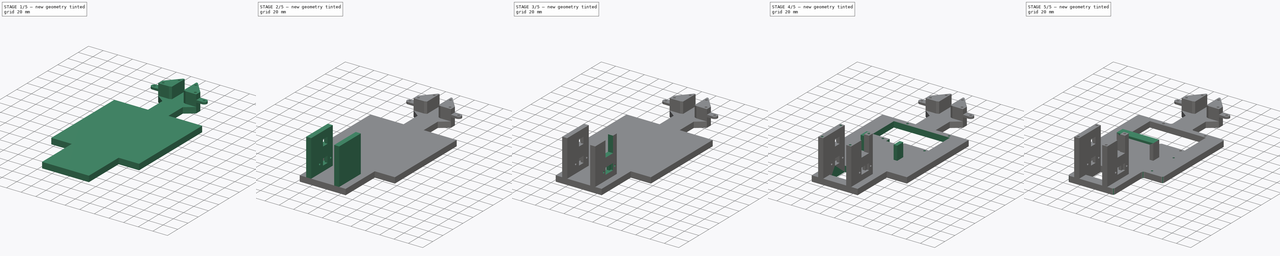
[diagram: build sequence overview — one tinted view per stage of 5, left to right]
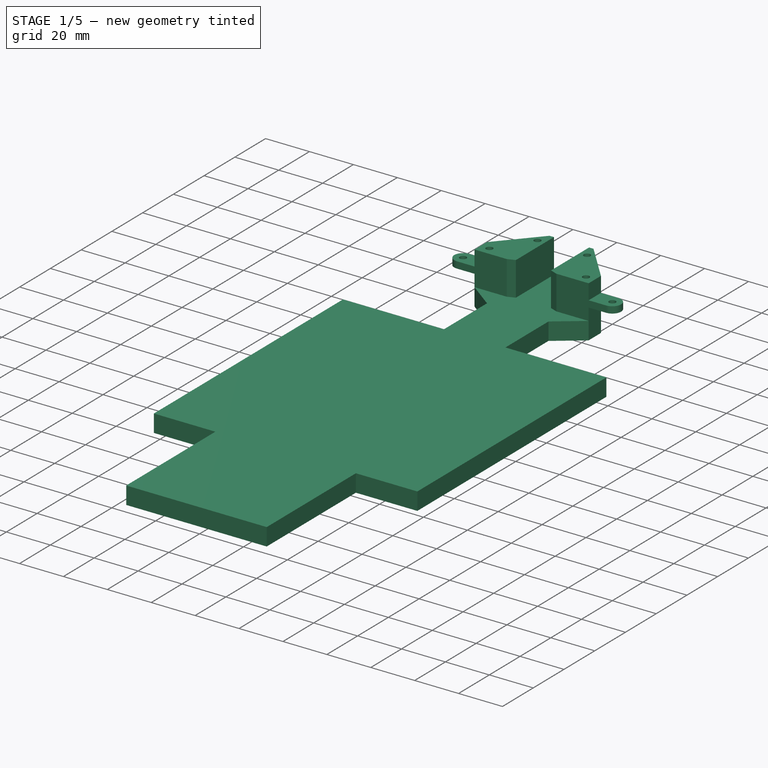
[diagram: stage 1 of 5 — iso view after this stage's code; geometry added in this stage tinted green]
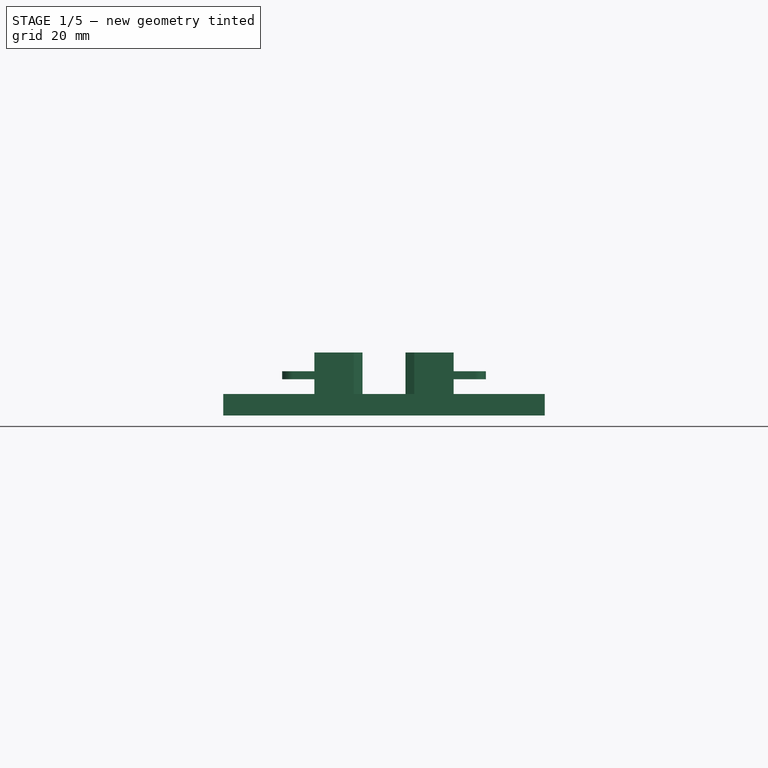
[diagram: stage 1 of 5 — front view after this stage's code; geometry added in this stage tinted green]
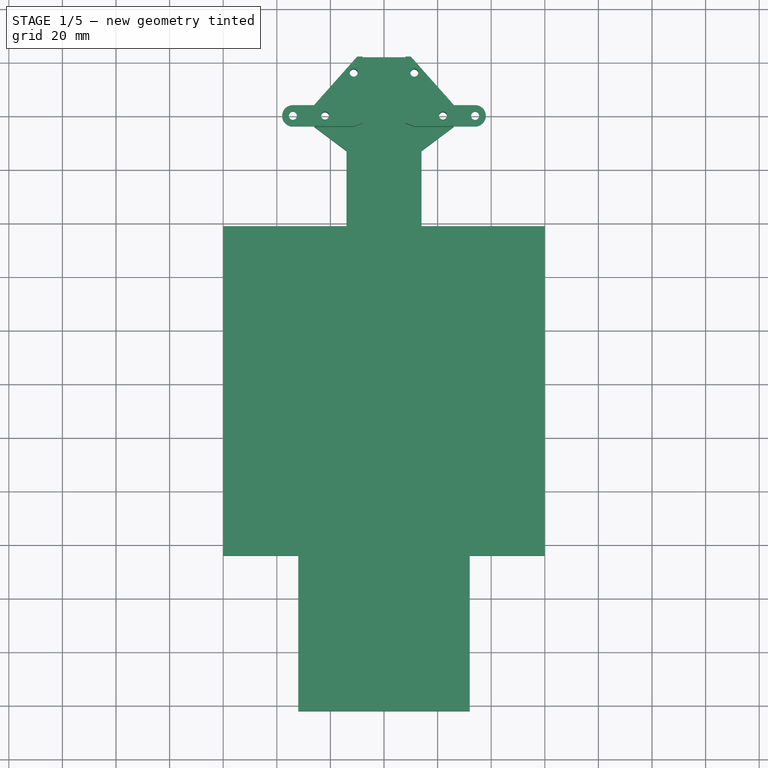
[diagram: stage 1 of 5 — top view after this stage's code; geometry added in this stage tinted green]
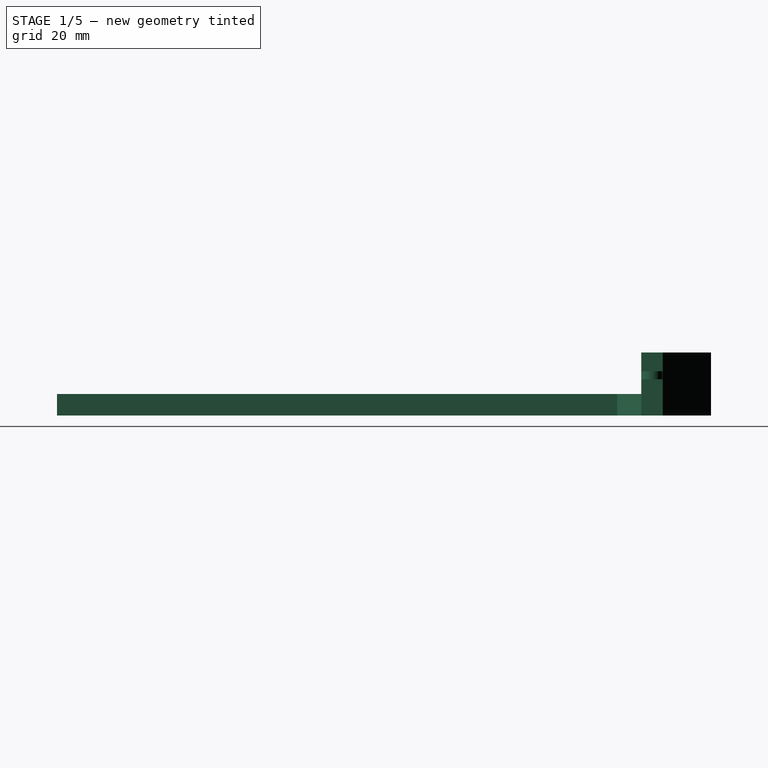
[diagram: stage 1 of 5 — right view after this stage's code; geometry added in this stage tinted green]
FCSTD DOCUMENT  (FreeCAD 1.0R39319 (Git))
Label: Chassis
License: All rights reserved
LicenseURL: https://en.wikipedia.org/wiki/All_rights_reserved
objects: Sketcher::SketchObject×18, PartDesign::Pocket×11, PartDesign::Pad×7, PartDesign::Fillet×2, App::Link×1, PartDesign::SubShapeBinder×1, PartDesign::Body×1, App::Part×1
note: 98 computed .brp shape members not serialized (recipe doc carries the construction recipe); baked Part::Feature solids carry a one-line shape summary decoded from their .brp
EXTERNAL_REF file=../Models/SteeringAckermannModel.FCStd obj=Spreadsheet
EXTERNAL_REF file=../Models/SteeringAckermannModel.FCStd obj=Part

FEATURE [App::Link] Link  label="SteeringAckermannSpreadsheet"
  LinkedObject = -> <external ../Models/SteeringAckermannModel.FCStd>#Spreadsheet
FEATURE [PartDesign::SubShapeBinder] Binder  label="SteeringAckermannModel"
  BindCopyOnChange = 0
  BindMode = 0
  ClaimChildren = false
  Context = -> Part [Body.Binder.]
  Fuse = false
  MakeFace = true
  OffsetFill = false
  OffsetIntersection = false
  OffsetJoinType = 0
  OffsetOpenResult = false
  PartialLoad = false
  Refine = true
  Relative = true
  Support = -> [<external ../Models/SteeringAckermannModel.FCStd>#Part[Sketch001.]]
  _Version = 2
FEATURE [Sketcher::SketchObject] Sketch
  ArcFitTolerance = 1e-06
  AttachmentSupport = -> [XY_Plane001]
  ExternalGeometry = -> [Binder]
  FullyConstrained = true
  MakeInternals = false
  MapMode = 5
  expr: Constraints[31] = <<SteeringAckermannSpreadsheet>>.wheeldepth / 2 + 4
  expr: Constraints[33] = <<SteeringAckermannSpreadsheet>>.wheeldia / 2 + 2
  expr: Constraints[34] = <<SteeringAckermannSpreadsheet>>.wheeldia / 2
  expr: Constraints[43] = <<SteeringAckermannSpreadsheet>>.bodywidth
  sketch-geometry (22):
    g0: LineSegment StartX=-26 StartY=4 StartZ=0 EndX=-26 EndY=-4 EndZ=0
    g1: LineSegment StartX=-26 StartY=4 StartZ=0 EndX=-10 EndY=22 EndZ=0
    g2: LineSegment StartX=-10 StartY=22 StartZ=0 EndX=10 EndY=22 EndZ=0
    g3: LineSegment StartX=-26 StartY=-4 StartZ=0 EndX=-14 EndY=-13 EndZ=0
    g4: LineSegment StartX=-14 StartY=-13 StartZ=0 EndX=-14 EndY=-41 EndZ=0
    g5: LineSegment StartX=10 StartY=22 StartZ=0 EndX=26 EndY=4 EndZ=0
    g6: LineSegment StartX=26 StartY=4 StartZ=0 EndX=26 EndY=-4 EndZ=0
    g7: LineSegment StartX=26 StartY=-4 StartZ=0 EndX=14 EndY=-13 EndZ=0
    g8: LineSegment StartX=14 StartY=-13 StartZ=0 EndX=14 EndY=-41 EndZ=0
    g9: LineSegment StartX=-14 StartY=-41 StartZ=0 EndX=-60 EndY=-41 EndZ=0
    g10: LineSegment StartX=-60 StartY=-41 StartZ=0 EndX=-60 EndY=-164 EndZ=0
    g11: LineSegment StartX=-60 StartY=-164 StartZ=0 EndX=-32 EndY=-164 EndZ=0
    g12: LineSegment StartX=-32 StartY=-164 StartZ=0 EndX=-32 EndY=-222 EndZ=0
    g13: LineSegment StartX=-32 StartY=-222 StartZ=0 EndX=32 EndY=-222 EndZ=0
    g14: LineSegment StartX=14 StartY=-41 StartZ=0 EndX=60 EndY=-41 EndZ=0
    g15: LineSegment StartX=60 StartY=-41 StartZ=0 EndX=60 EndY=-164 EndZ=0
    g16: LineSegment StartX=60 StartY=-164 StartZ=0 EndX=32 EndY=-164 EndZ=0
    g17: LineSegment StartX=32 StartY=-164 StartZ=0 EndX=32 EndY=-222 EndZ=0
    g18: Circle CenterX=-22 CenterY=0 CenterZ=0 NormalX=0 NormalY=0 NormalZ=1 AngleXU=0 Radius=1.5
    g19: Circle CenterX=22 CenterY=0 CenterZ=0 NormalX=0 NormalY=0 NormalZ=1 AngleXU=0 Radius=1.5
    g20: Circle CenterX=-11.3195 CenterY=16 CenterZ=0 NormalX=0 NormalY=0 NormalZ=1 AngleXU=0 Radius=1.5
    g21: Circle CenterX=11.3195 CenterY=16 CenterZ=0 NormalX=0 NormalY=0 NormalZ=1 AngleXU=0 Radius=1.5
  constraints (54):
    c: Distance(g0,g0) = 8
    c: Symmetric(g0,g0,g-1)
    c: Distance(g-3,g0) = 8
    c: Coincident(g1,g0)
    c: Coincident(g2,g1)
    c: DistanceX(g2,g2) = 20
    c: Distance(g-1,g2) = 22
    c: Symmetric(g1,g2,g-2)
    c: Coincident(g3,g0)
    c: Coincident(g4,g3)
    c: Vertical(g4)
    c: DistanceY(g4,g4) = 28
    c: Coincident(g5,g2)
    c: Coincident(g6,g5)
    c: Coincident(g7,g6)
    c: Coincident(g8,g7)
    c: Symmetric(g0,g5,g-2)
    c: Symmetric(g0,g6,g-2)
    c: Symmetric(g3,g7,g-2)
    c: Symmetric(g4,g8,g-2)
    c: Distance(g8,g4) = 28
    c: Coincident(g9,g4)
    c: Horizontal(g9)
    c: Coincident(g10,g9)
    c: Vertical(g10)
    c: Coincident(g11,g10)
    c: Horizontal(g11)
    c: Coincident(g12,g11)
    c: Vertical(g12)
    c: Coincident(g13,g12)
    c: DistanceY(g10,g10) = 123
    c: Distance(g-5,g12) = 16
    c: Symmetric(g12,g13,g-2)
    c: DistanceY(g-7,g11) = 30
    c: DistanceY(g12,g-7) = 28
    c: Coincident(g14,g8)
    c: Coincident(g15,g14)
    c: Coincident(g16,g15)
    c: Coincident(g17,g16)
    c: Coincident(g17,g13)
    c: Symmetric(g9,g14,g-2)
    c: Symmetric(g10,g15,g-2)
    c: Symmetric(g11,g16,g-2)
    c: Distance(g15,g10) = 120
    c: Diameter(g18) = 3
    c: PointOnObject(g18,g-1)
    c: Distance(g18,g0) = 4
    c: Symmetric(g18,g19,g-2)
    c: Diameter(g20) = 3
    c: Equal(g18,g19)
    c: Distance(g20,g1) = 3
    c: DistanceY(g20,g1) = 6
    c: Symmetric(g20,g21,g-2)
    c: Equal(g20,g21)
FEATURE [PartDesign::Pad] Pad
  Direction = (0,0,1)
  Length = 8
  Length2 = 10
  Profile = -> Sketch
  ReferenceAxis = -> Sketch [N_Axis]
  Refine = true
  Suppressed = false
  Type = 0
FEATURE [Sketcher::SketchObject] Sketch001
  ArcFitTolerance = 1e-06
  AttachmentSupport = -> [Pad]
  ExternalGeometry = -> [Sketch]
  FullyConstrained = true
  MakeInternals = false
  MapMode = 5
  Placement = pos=(0,0,8) rot=(0,0,1;0rad)
  sketch-geometry (16):
    g0: LineSegment StartX=-26 StartY=-4 StartZ=0 EndX=-26 EndY=4 EndZ=0
    g1: LineSegment StartX=-26 StartY=4 StartZ=0 EndX=-10 EndY=22 EndZ=0
    g2: LineSegment StartX=10 StartY=22 StartZ=0 EndX=26 EndY=4 EndZ=0
    g3: LineSegment StartX=26 StartY=4 StartZ=0 EndX=26 EndY=-4 EndZ=0
    g4: Circle CenterX=-22 CenterY=0 CenterZ=0 NormalX=0 NormalY=0 NormalZ=1 AngleXU=0 Radius=1.5
    g5: Circle CenterX=-11.3195 CenterY=16 CenterZ=0 NormalX=0 NormalY=0 NormalZ=1 AngleXU=0 Radius=1.5
    g6: Circle CenterX=11.3195 CenterY=16 CenterZ=0 NormalX=0 NormalY=0 NormalZ=1 AngleXU=0 Radius=1.5
    g7: Circle CenterX=22 CenterY=0 CenterZ=0 NormalX=0 NormalY=0 NormalZ=1 AngleXU=0 Radius=1.5
    g8: LineSegment StartX=-10 StartY=22 StartZ=0 EndX=-8 EndY=22 EndZ=0
    g9: LineSegment StartX=-26 StartY=-4 StartZ=0 EndX=-11.3 EndY=-4 EndZ=0
    g10: LineSegment StartX=-11.3 StartY=-4 StartZ=0 EndX=-8 EndY=-2.75 EndZ=0
    g11: LineSegment StartX=-8 StartY=22 StartZ=0 EndX=-8 EndY=-2.75 EndZ=0
    g12: LineSegment StartX=10 StartY=22 StartZ=0 EndX=8 EndY=22 EndZ=0
    g13: LineSegment StartX=8 StartY=22 StartZ=0 EndX=8 EndY=-2.75 EndZ=0
    g14: LineSegment StartX=8 StartY=-2.75 StartZ=0 EndX=11.3 EndY=-4 EndZ=0
    g15: LineSegment StartX=11.3 StartY=-4 StartZ=0 EndX=26 EndY=-4 EndZ=0
  constraints (35):
    c: Coincident(g0,g-4)
    c: Coincident(g0,g-5)
    c: Coincident(g1,g0)
    c: Coincident(g1,g-6)
    c: Coincident(g2,g-8)
    c: Coincident(g3,g2)
    c: Coincident(g3,g-8)
    c: Coincident(g4,g-3)
    c: Equal(g4,g-3)
    c: Coincident(g5,g-9)
    c: Equal(g5,g-9)
    c: Coincident(g6,g-10)
    c: Equal(g6,g-10)
    c: Coincident(g7,g-11)
    c: Equal(g7,g-11)
    c: Coincident(g2,g-7)
    c: Coincident(g8,g1)
    c: PointOnObject(g8,g-6)
    c: Coincident(g9,g0)
    c: Horizontal(g9)
    c: Coincident(g10,g9)
    c: Coincident(g11,g8)
    c: Coincident(g11,g10)
    c: Vertical(g11)
    c: DistanceY(g11,g11) = 24.75
    c: DistanceX(g9,g9) = 14.7
    c: Coincident(g12,g2)
    c: Coincident(g13,g12)
    c: Coincident(g14,g13)
    c: Coincident(g15,g14)
    c: Coincident(g15,g3)
    c: Symmetric(g8,g12,g-2)
    c: Symmetric(g10,g13,g-2)
    c: Symmetric(g9,g14,g-2)
    c: DistanceX(g10,g13) = 16
FEATURE [PartDesign::Pad] Pad001
  BaseFeature = -> Pad
  Direction = (0,0,1)
  Length = 5.5
  Length2 = 10
  Profile = -> Sketch001
  ReferenceAxis = -> Sketch001 [N_Axis]
  Refine = true
  Suppressed = false
  Type = 0
  expr: Length = <<SteeringAckermannSpreadsheet>>.wheeldia / 2 - 8 - 8 - 3 - 7 / 2
FEATURE [Sketcher::SketchObject] Sketch002
  ArcFitTolerance = 1e-06
  AttachmentSupport = -> [Pad001]
  ExternalGeometry = -> [Sketch001,Binder]
  FullyConstrained = true
  MakeInternals = false
  MapMode = 5
  Placement = pos=(0,0,13.5) rot=(0,0,1;0rad)
  sketch-geometry (22):
    g0: LineSegment StartX=-26 StartY=4 StartZ=0 EndX=-10 EndY=22 EndZ=0
    g1: LineSegment StartX=-10 StartY=22 StartZ=0 EndX=-8 EndY=22 EndZ=0
    g2: LineSegment StartX=-8 StartY=22 StartZ=0 EndX=-8 EndY=-2.75 EndZ=0
    g3: LineSegment StartX=-8 StartY=-2.75 StartZ=0 EndX=-11.3 EndY=-4 EndZ=0
    g4: LineSegment StartX=-11.3 StartY=-4 StartZ=0 EndX=-26 EndY=-4 EndZ=0
    g5: LineSegment StartX=26 StartY=4 StartZ=0 EndX=10 EndY=22 EndZ=0
    g6: LineSegment StartX=10 StartY=22 StartZ=0 EndX=8 EndY=22 EndZ=0
    g7: LineSegment StartX=8 StartY=22 StartZ=0 EndX=8 EndY=-2.75 EndZ=0
    g8: LineSegment StartX=8 StartY=-2.75 StartZ=0 EndX=11.3 EndY=-4 EndZ=0
    g9: LineSegment StartX=11.3 StartY=-4 StartZ=0 EndX=26 EndY=-4 EndZ=0
    g10: Circle CenterX=-22 CenterY=0 CenterZ=0 NormalX=0 NormalY=0 NormalZ=1 AngleXU=0 Radius=1.5
    g11: Circle CenterX=-11.3195 CenterY=16 CenterZ=0 NormalX=0 NormalY=0 NormalZ=1 AngleXU=0 Radius=1.5
    g12: Circle CenterX=22 CenterY=0 CenterZ=0 NormalX=0 NormalY=0 NormalZ=1 AngleXU=0 Radius=1.5
    g13: Circle CenterX=11.3195 CenterY=16 CenterZ=0 NormalX=0 NormalY=0 NormalZ=1 AngleXU=0 Radius=1.5
    g14: Circle CenterX=-34 CenterY=0 CenterZ=0 NormalX=0 NormalY=0 NormalZ=1 AngleXU=0 Radius=1.5
    g15: Circle CenterX=34 CenterY=0 CenterZ=0 NormalX=0 NormalY=0 NormalZ=1 AngleXU=0 Radius=1.5
    g16: ArcOfCircle CenterX=-34 CenterY=0 CenterZ=0 NormalX=0 NormalY=0 NormalZ=1 AngleXU=0 Radius=4 StartAngle=1.5708 EndAngle=4.71239
    g17: LineSegment StartX=-26 StartY=-4 StartZ=0 EndX=-34 EndY=-4 EndZ=0
    g18: LineSegment StartX=-26 StartY=4 StartZ=0 EndX=-34 EndY=4 EndZ=0
    g19: ArcOfCircle CenterX=34 CenterY=0 CenterZ=0 NormalX=0 NormalY=0 NormalZ=1 AngleXU=0 Radius=4 StartAngle=4.71239 EndAngle=7.85398
    g20: LineSegment StartX=26 StartY=-4 StartZ=0 EndX=34 EndY=-4 EndZ=0
    g21: LineSegment StartX=26 StartY=4 StartZ=0 EndX=34 EndY=4 EndZ=0
  constraints (44):
    c: Coincident(g0,g-3)
    c: Coincident(g0,g-4)
    c: Coincident(g1,g0)
    c: Coincident(g1,g-5)
    c: Coincident(g2,g1)
    c: Coincident(g2,g-6)
    c: Coincident(g3,g2)
    c: Coincident(g3,g-7)
    c: Coincident(g4,g3)
    c: Coincident(g4,g-7)
    c: Coincident(g5,g-12)
    c: Coincident(g5,g-12)
    c: Coincident(g6,g5)
    c: Coincident(g6,g-11)
    c: Coincident(g7,g6)
    c: Coincident(g7,g-13)
    c: Coincident(g8,g7)
    c: Coincident(g8,g-14)
    c: Coincident(g9,g8)
    c: Coincident(g9,g-14)
    c: Coincident(g10,g-8)
    c: Equal(g10,g-8)
    c: Coincident(g11,g-9)
    c: Equal(g11,g-9)
    c: Coincident(g12,g-15)
    c: Equal(g12,g-15)
    c: Coincident(g13,g-16)
    c: Equal(g13,g-16)
    c: Diameter(g14) = 3
    c: Coincident(g14,g-17)
    c: Coincident(g15,g-18)
    c: Equal(g14,g15)
    c: Coincident(g16,g14)
    c: Coincident(g17,g4)
    c: Coincident(g18,g0)
    c: Tangent(g18,g16) = -1.5708
    c: Tangent(g17,g16) = 1.5708
    c: Horizontal(g17)
    c: Coincident(g19,g15)
    c: Coincident(g20,g9)
    c: Coincident(g21,g5)
    c: Tangent(g20,g19) = -1.5708
    c: Tangent(g21,g19) = 1.5708
    c: Horizontal(g20)
FEATURE [PartDesign::Pad] Pad002
  BaseFeature = -> Pad001
  Direction = (0,0,1)
  Length = 3
  Length2 = 10
  Profile = -> Sketch002
  ReferenceAxis = -> Sketch002 [N_Axis]
  Refine = true
  Suppressed = false
  Type = 0
FEATURE [Sketcher::SketchObject] Sketch003
  ArcFitTolerance = 1e-06
  AttachmentSupport = -> [Pad002]
  ExternalGeometry = -> [Sketch]
  FullyConstrained = true
  MakeInternals = false
  MapMode = 5
  Placement = pos=(0,0,16.5) rot=(0,0,1;0rad)
  expr: Constraints[24] = Sketch001.Constraints[24]
  expr: Constraints[25] = Sketch001.Constraints[25]
  expr: Constraints[34] = Sketch001.Constraints[34]
  sketch-geometry (16):
    g0: LineSegment StartX=-26 StartY=-4 StartZ=0 EndX=-26 EndY=4 EndZ=0
    g1: LineSegment StartX=-26 StartY=4 StartZ=0 EndX=-10 EndY=22 EndZ=0
    g2: LineSegment StartX=10 StartY=22 StartZ=0 EndX=26 EndY=4 EndZ=0
    g3: LineSegment StartX=26 StartY=4 StartZ=0 EndX=26 EndY=-4 EndZ=0
    g4: Circle CenterX=-22 CenterY=0 CenterZ=0 NormalX=0 NormalY=0 NormalZ=1 AngleXU=0 Radius=1.5
    g5: Circle CenterX=-11.3195 CenterY=16 CenterZ=0 NormalX=0 NormalY=0 NormalZ=1 AngleXU=0 Radius=1.5
    g6: Circle CenterX=11.3195 CenterY=16 CenterZ=0 NormalX=0 NormalY=0 NormalZ=1 AngleXU=0 Radius=1.5
    g7: Circle CenterX=22 CenterY=0 CenterZ=0 NormalX=0 NormalY=0 NormalZ=1 AngleXU=0 Radius=1.5
    g8: LineSegment StartX=-10 StartY=22 StartZ=0 EndX=-8 EndY=22 EndZ=0
    g9: LineSegment StartX=-26 StartY=-4 StartZ=0 EndX=-11.3 EndY=-4 EndZ=0
    g10: LineSegment StartX=-11.3 StartY=-4 StartZ=0 EndX=-8 EndY=-2.75 EndZ=0
    g11: LineSegment StartX=-8 StartY=22 StartZ=0 EndX=-8 EndY=-2.75 EndZ=0
    g12: LineSegment StartX=10 StartY=22 StartZ=0 EndX=8 EndY=22 EndZ=0
    g13: LineSegment StartX=8 StartY=22 StartZ=0 EndX=8 EndY=-2.75 EndZ=0
    g14: LineSegment StartX=8 StartY=-2.75 StartZ=0 EndX=11.3 EndY=-4 EndZ=0
    g15: LineSegment StartX=11.3 StartY=-4 StartZ=0 EndX=26 EndY=-4 EndZ=0
  constraints (35):
    c: Coincident(g0,g-4)
    c: Coincident(g0,g-5)
    c: Coincident(g1,g0)
    c: Coincident(g1,g-6)
    c: Coincident(g2,g-8)
    c: Coincident(g3,g2)
    c: Coincident(g3,g-8)
    c: Coincident(g4,g-3)
    c: Equal(g4,g-3)
    c: Coincident(g5,g-9)
    c: Equal(g5,g-9)
    c: Coincident(g6,g-10)
    c: Equal(g6,g-10)
    c: Coincident(g7,g-11)
    c: Equal(g7,g-11)
    c: Coincident(g2,g-7)
    c: Coincident(g8,g1)
    c: PointOnObject(g8,g-6)
    c: Coincident(g9,g0)
    c: Horizontal(g9)
    c: Coincident(g10,g9)
    c: Coincident(g11,g8)
    c: Coincident(g11,g10)
    c: Vertical(g11)
    c: DistanceY(g11,g11) = 24.75
    c: DistanceX(g9,g9) = 14.7
    c: Coincident(g12,g2)
    c: Coincident(g13,g12)
    c: Coincident(g14,g13)
    c: Coincident(g15,g14)
    c: Coincident(g15,g3)
    c: Symmetric(g8,g12,g-2)
    c: Symmetric(g10,g13,g-2)
    c: Symmetric(g9,g14,g-2)
    c: DistanceX(g10,g13) = 16
FEATURE [PartDesign::Pad] Pad003
  BaseFeature = -> Pad002
  Direction = (0,0,1)
  Length = 7
  Length2 = 10
  Profile = -> Sketch003
  ReferenceAxis = -> Sketch003 [N_Axis]
  Refine = true
  Suppressed = false
  Type = 0
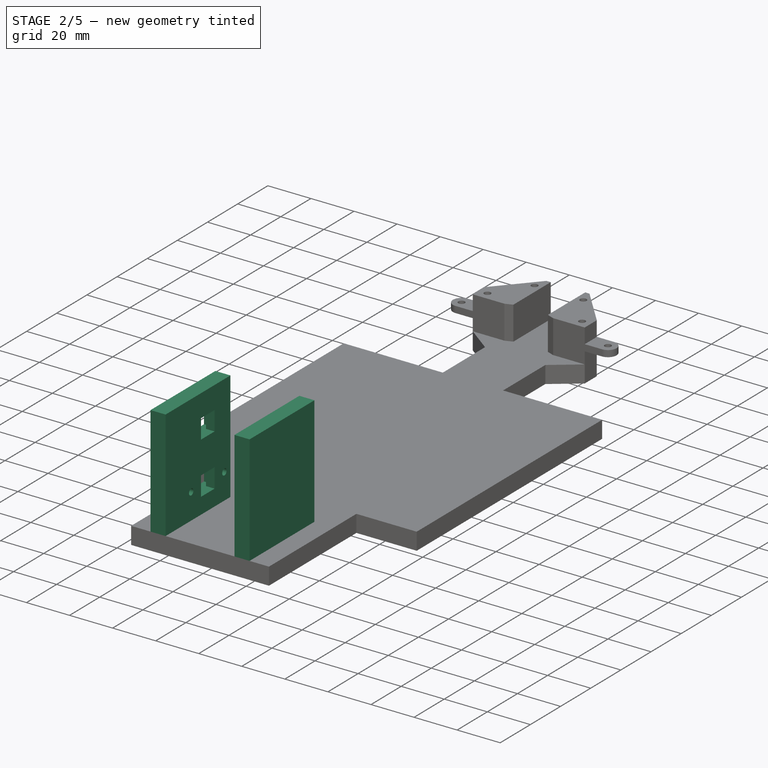
[diagram: stage 2 of 5 — iso view after this stage's code; geometry added in this stage tinted green]
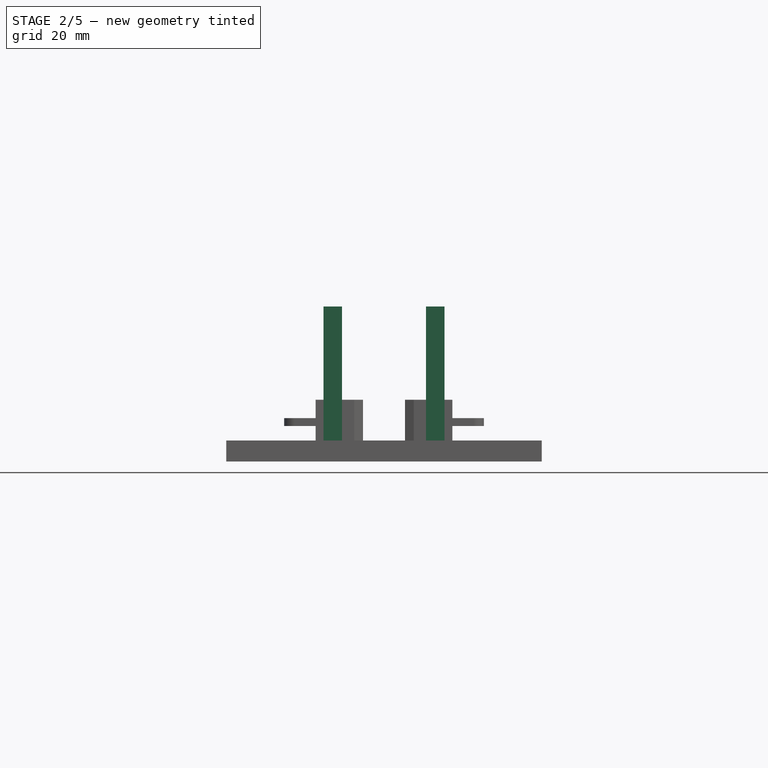
[diagram: stage 2 of 5 — front view after this stage's code; geometry added in this stage tinted green]
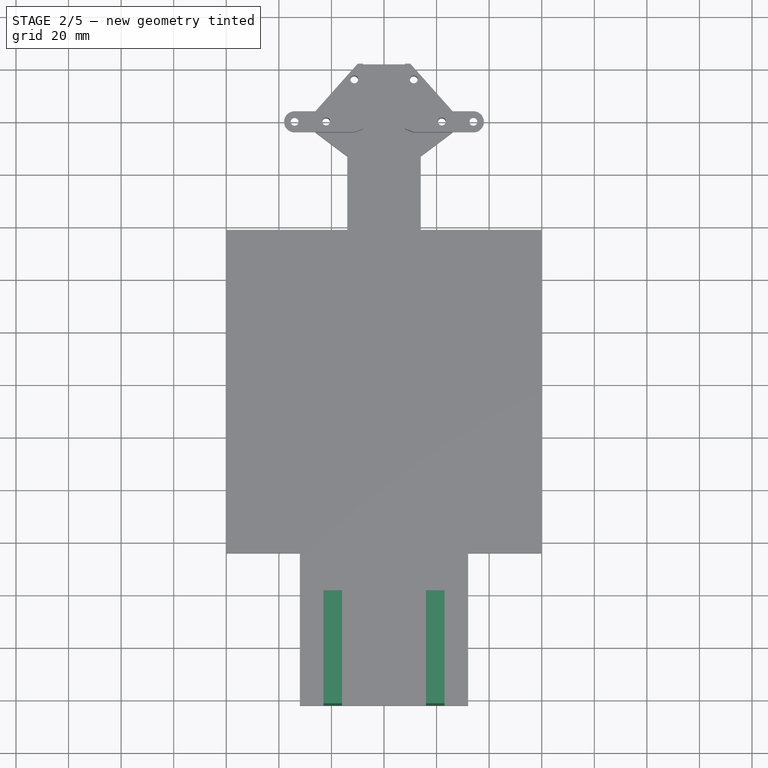
[diagram: stage 2 of 5 — top view after this stage's code; geometry added in this stage tinted green]
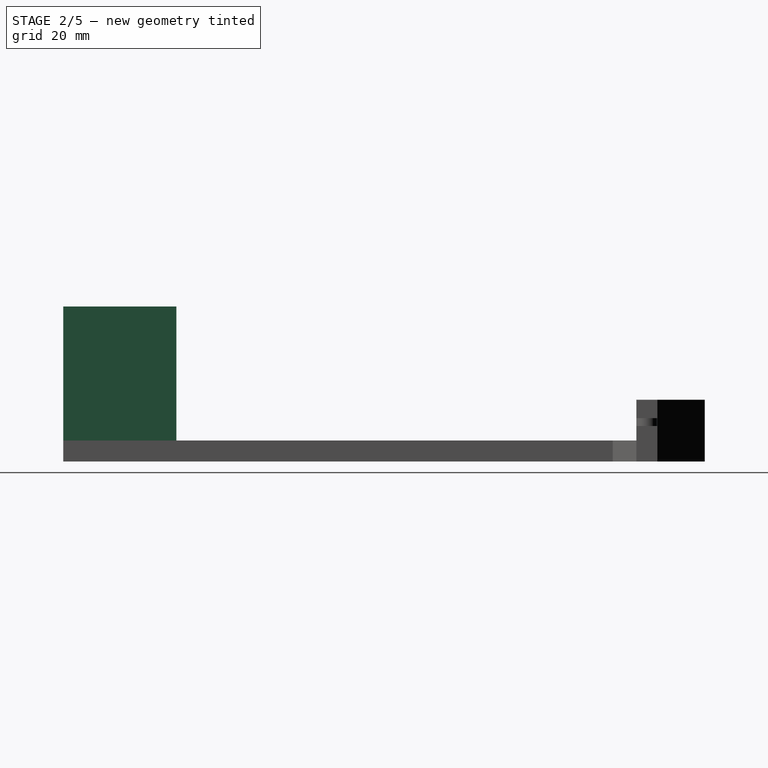
[diagram: stage 2 of 5 — right view after this stage's code; geometry added in this stage tinted green]
FEATURE [Sketcher::SketchObject] Sketch004
  ArcFitTolerance = 1e-06
  AttachmentSupport = -> [Pad003]
  ExternalGeometry = -> [Binder,Pad003]
  FullyConstrained = true
  MakeInternals = false
  MapMode = 5
  Placement = pos=(0,0,8) rot=(0,0,1;0rad)
  sketch-geometry (14):
    g0: LineSegment StartX=-23 StartY=-179 StartZ=0 EndX=-23 EndY=-209 EndZ=0
    g1: LineSegment [constr] StartX=-23 StartY=-209 StartZ=0 EndX=-16 EndY=-209 EndZ=0
    g2: LineSegment StartX=-16 StartY=-209 StartZ=0 EndX=-16 EndY=-179 EndZ=0
    g3: LineSegment StartX=-16 StartY=-179 StartZ=0 EndX=-23 EndY=-179 EndZ=0
    g4: LineSegment StartX=-23 StartY=-222 StartZ=0 EndX=-16 EndY=-222 EndZ=0
    g5: LineSegment StartX=-23 StartY=-222 StartZ=0 EndX=-23 EndY=-209 EndZ=0
    g6: LineSegment StartX=-16 StartY=-222 StartZ=0 EndX=-16 EndY=-209 EndZ=0
    g7: LineSegment StartX=23 StartY=-179 StartZ=0 EndX=23 EndY=-209 EndZ=0
    g8: LineSegment [constr] StartX=23 StartY=-209 StartZ=0 EndX=16 EndY=-209 EndZ=0
    g9: LineSegment StartX=16 StartY=-209 StartZ=0 EndX=16 EndY=-179 EndZ=0
    g10: LineSegment StartX=16 StartY=-179 StartZ=0 EndX=23 EndY=-179 EndZ=0
    g11: LineSegment StartX=23 StartY=-222 StartZ=0 EndX=16 EndY=-222 EndZ=0
    g12: LineSegment StartX=23 StartY=-222 StartZ=0 EndX=23 EndY=-209 EndZ=0
    g13: LineSegment StartX=16 StartY=-222 StartZ=0 EndX=16 EndY=-209 EndZ=0
  constraints (33):
    c: Coincident(g0,g1)
    c: Coincident(g1,g2)
    c: Coincident(g2,g3)
    c: Coincident(g3,g0)
    c: Vertical(g2)
    c: Horizontal(g1)
    c: Horizontal(g3)
    c: Symmetric(g0,g0,g-3)
    c: PointOnObject(g4,g-4)
    c: PointOnObject(g4,g-4)
    c: Coincident(g5,g4)
    c: Coincident(g5,g0)
    c: Vertical(g5)
    c: Coincident(g6,g4)
    c: Coincident(g6,g1)
    c: Vertical(g6)
    c: DistanceY(g0,g0) = 30
    c: DistanceX(g3,g3) = 7
    c: Coincident(g7,g8)
    c: Coincident(g8,g9)
    c: Coincident(g9,g10)
    c: Coincident(g10,g7)
    c: Coincident(g12,g11)
    c: Coincident(g12,g7)
    c: Coincident(g13,g11)
    c: Coincident(g13,g8)
    c: Symmetric(g4,g11,g-2)
    c: Symmetric(g4,g11,g-2)
    c: Symmetric(g1,g8,g-2)
    c: Symmetric(g0,g7,g-2)
    c: Symmetric(g2,g9,g-2)
    c: Symmetric(g0,g7,g-2)
    c: DistanceX(g2,g9) = 32
FEATURE [PartDesign::Pad] Pad004
  BaseFeature = -> Pad003
  Direction = (0,0,1)
  Length = 51
  Length2 = 10
  Profile = -> Sketch004
  ReferenceAxis = -> Sketch004 [N_Axis]
  Refine = true
  Suppressed = false
  Type = 0
FEATURE [Sketcher::SketchObject] Sketch005
  ArcFitTolerance = 1e-06
  AttachmentSupport = -> [Pad004]
  ExternalGeometry = -> [Pad004,Sketch004]
  FullyConstrained = true
  MakeInternals = false
  MapMode = 5
  Placement = pos=(-23,0,0) rot=(0.57735,-0.57735,-0.57735;2.0944rad)
  expr: Constraints[3] = <<SteeringAckermannSpreadsheet>>.wheeldia / 2 - 8 - 8 + 24 / 2
  sketch-geometry (12):
    g0: LineSegment [constr] StartX=194 StartY=59 StartZ=0 EndX=194 EndY=8 EndZ=0
    g1: LineSegment [constr] StartX=179 StartY=32 StartZ=0 EndX=222 EndY=32 EndZ=0
    g2: LineSegment StartX=186.5 StartY=15.5 StartZ=0 EndX=201.5 EndY=15.5 EndZ=0
    g3: LineSegment StartX=201.5 StartY=15.5 StartZ=0 EndX=201.5 EndY=24.5 EndZ=0
    g4: LineSegment StartX=201.5 StartY=24.5 StartZ=0 EndX=186.5 EndY=24.5 EndZ=0
    g5: LineSegment StartX=186.5 StartY=24.5 StartZ=0 EndX=186.5 EndY=15.5 EndZ=0
    g6: GeomPoint [constr] X=194 Y=20 Z=0
    g7: LineSegment StartX=186.5 StartY=48.5 StartZ=0 EndX=201.5 EndY=48.5 EndZ=0
    g8: LineSegment StartX=201.5 StartY=48.5 StartZ=0 EndX=201.5 EndY=39.5 EndZ=0
    g9: LineSegment StartX=201.5 StartY=39.5 StartZ=0 EndX=186.5 EndY=39.5 EndZ=0
    g10: LineSegment StartX=186.5 StartY=39.5 StartZ=0 EndX=186.5 EndY=48.5 EndZ=0
    g11: LineSegment [constr] StartX=209 StartY=8 StartZ=0 EndX=209 EndY=59 EndZ=0
  constraints (30):
    c: PointOnObject(g1,g-5)
    c: PointOnObject(g1,g-6)
    c: Horizontal(g1)
    c: DistanceY(g-5,g1) = 24
    c: Coincident(g2,g3)
    c: Coincident(g3,g4)
    c: Coincident(g4,g5)
    c: Coincident(g5,g2)
    c: Horizontal(g2)
    c: Horizontal(g4)
    c: Vertical(g3)
    c: Vertical(g5)
    c: Symmetric(g4,g2,g6)
    c: PointOnObject(g6,g0)
    c: DistanceX(g2,g2) = 15
    c: DistanceY(g5,g5) = 9
    c: Distance(g6,g1) = 12
    c: Coincident(g7,g8)
    c: Coincident(g8,g9)
    c: Coincident(g9,g10)
    c: Coincident(g10,g7)
    c: Symmetric(g4,g9,g1)
    c: Symmetric(g7,g2,g1)
    c: Symmetric(g8,g3,g1)
    c: Symmetric(g7,g2,g1)
    c: Coincident(g11,g-7)
    c: PointOnObject(g11,g-4)
    c: Vertical(g11)
    c: Symmetric(g-5,g11,g0)
    c: Symmetric(g-5,g11,g0)
FEATURE [PartDesign::Pocket] Pocket
  BaseFeature = -> Pad004
  Direction = (1,0,0)
  Length = 3
  Length2 = 5
  Profile = -> Sketch005
  ReferenceAxis = -> Sketch005 [N_Axis]
  Refine = true
  Suppressed = false
  Type = 0
FEATURE [Sketcher::SketchObject] Sketch006
  ArcFitTolerance = 1e-06
  AttachmentSupport = -> [Pocket]
  ExternalGeometry = -> [Sketch005]
  FullyConstrained = true
  MakeInternals = false
  MapMode = 5
  Placement = pos=(-20,0,0) rot=(0.57735,-0.57735,-0.57735;2.0944rad)
  sketch-geometry (9):
    g0: LineSegment [constr] StartX=194 StartY=15.5 StartZ=0 EndX=194 EndY=48.5 EndZ=0
    g1: LineSegment StartX=189.5 StartY=15.5 StartZ=0 EndX=198.5 EndY=15.5 EndZ=0
    g2: LineSegment StartX=198.5 StartY=15.5 StartZ=0 EndX=198.5 EndY=24.5 EndZ=0
    g3: LineSegment StartX=198.5 StartY=24.5 StartZ=0 EndX=189.5 EndY=24.5 EndZ=0
    g4: LineSegment StartX=189.5 StartY=24.5 StartZ=0 EndX=189.5 EndY=15.5 EndZ=0
    g5: LineSegment StartX=189.5 StartY=48.5 StartZ=0 EndX=189.5 EndY=39.5 EndZ=0
    g6: LineSegment StartX=189.5 StartY=39.5 StartZ=0 EndX=198.5 EndY=39.5 EndZ=0
    g7: LineSegment StartX=198.5 StartY=39.5 StartZ=0 EndX=198.5 EndY=48.5 EndZ=0
    g8: LineSegment StartX=198.5 StartY=48.5 StartZ=0 EndX=189.5 EndY=48.5 EndZ=0
  constraints (24):
    c: Symmetric(g-3,g-3,g0)
    c: Symmetric(g-6,g-6,g0)
    c: Coincident(g1,g2)
    c: Coincident(g2,g3)
    c: Coincident(g3,g4)
    c: Coincident(g4,g1)
    c: Horizontal(g1)
    c: Vertical(g2)
    c: Vertical(g4)
    c: PointOnObject(g1,g-3)
    c: PointOnObject(g2,g-4)
    c: Symmetric(g3,g2,g0)
    c: Equal(g3,g4)
    c: Coincident(g5,g6)
    c: Coincident(g6,g7)
    c: Coincident(g7,g8)
    c: Coincident(g8,g5)
    c: Vertical(g5)
    c: Vertical(g7)
    c: Horizontal(g8)
    c: PointOnObject(g5,g-6)
    c: PointOnObject(g6,g-5)
    c: Symmetric(g5,g6,g0)
    c: Equal(g6,g5)
FEATURE [PartDesign::Pocket] Pocket001
  BaseFeature = -> Pocket
  Direction = (1,0,0)
  Length = 0
  Length2 = 5
  Profile = -> Sketch006
  ReferenceAxis = -> Sketch006 [N_Axis]
  Refine = true
  Suppressed = false
  Type = 3
  UpToFace = -> Pocket [Face35]
FEATURE [Sketcher::SketchObject] Sketch007
  ArcFitTolerance = 1e-06
  AttachmentSupport = -> [Pocket001]
  ExternalGeometry = -> [Sketch005]
  FullyConstrained = true
  MakeInternals = false
  MapMode = 5
  Placement = pos=(-23,0,0) rot=(0.57735,-0.57735,-0.57735;2.0944rad)
  sketch-geometry (6):
    g0: Circle CenterX=183 CenterY=20 CenterZ=0 NormalX=0 NormalY=0 NormalZ=1 AngleXU=0 Radius=1.45
    g1: Circle CenterX=205 CenterY=20 CenterZ=0 NormalX=0 NormalY=0 NormalZ=1 AngleXU=0 Radius=1.45
    g2: LineSegment [constr] StartX=183 StartY=20 StartZ=0 EndX=205 EndY=20 EndZ=0
    g3: GeomPoint X=186.5 Y=20 Z=0
    g4: GeomPoint X=201.5 Y=20 Z=0
    g5: GeomPoint X=194 Y=20 Z=0
  constraints (11):
    c: Diameter(g0) = 2.9
    c: Equal(g0,g1)
    c: Coincident(g2,g0)
    c: Coincident(g2,g1)
    c: Symmetric(g-3,g-3,g2)
    c: PointOnObject(g3,g2)
    c: PointOnObject(g3,g-3)
    c: PointOnObject(g4,g-4)
    c: Symmetric(g3,g4,g5)
    c: Symmetric(g0,g1,g5)
    c: Distance(g0,g-3) = 3.5
FEATURE [PartDesign::Pocket] Pocket002
  BaseFeature = -> Pocket001
  Direction = (1,0,0)
  Length = 0
  Length2 = 5
  Profile = -> Sketch007
  ReferenceAxis = -> Sketch007 [N_Axis]
  Refine = true
  Suppressed = false
  Type = 3
  UpToFace = -> Pocket001 [Face35]
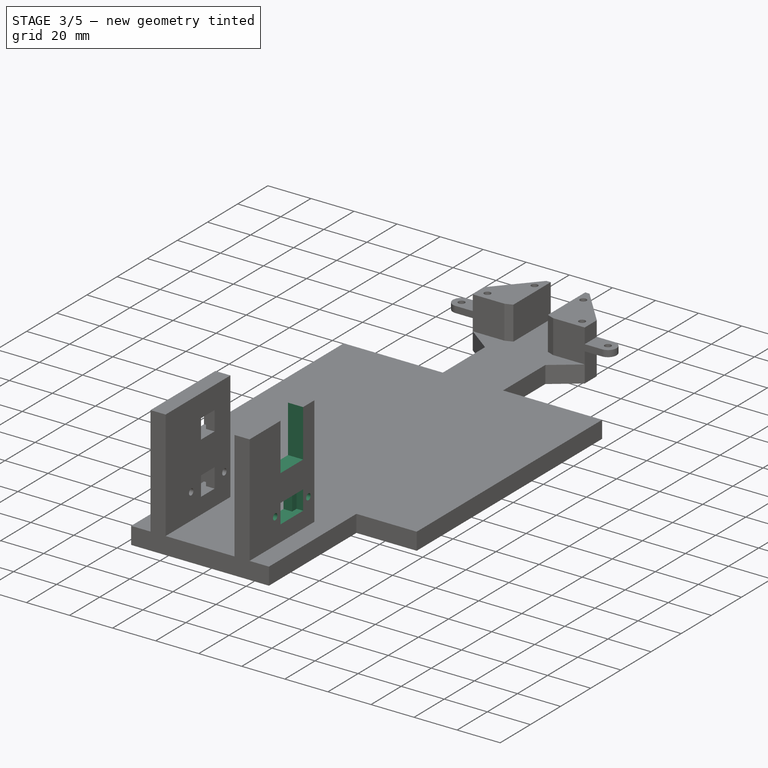
[diagram: stage 3 of 5 — iso view after this stage's code; geometry added in this stage tinted green]
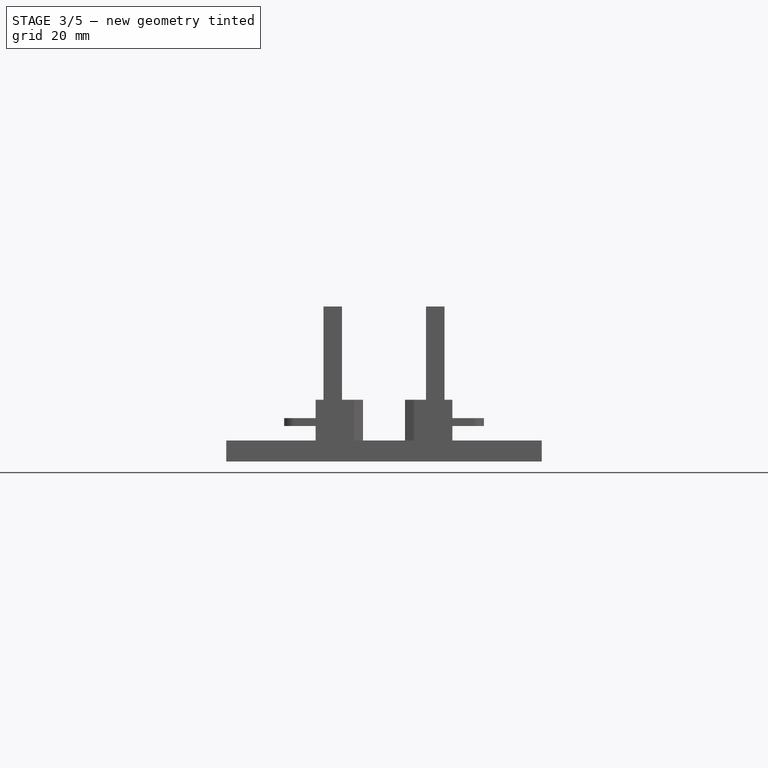
[diagram: stage 3 of 5 — front view after this stage's code; geometry added in this stage tinted green]
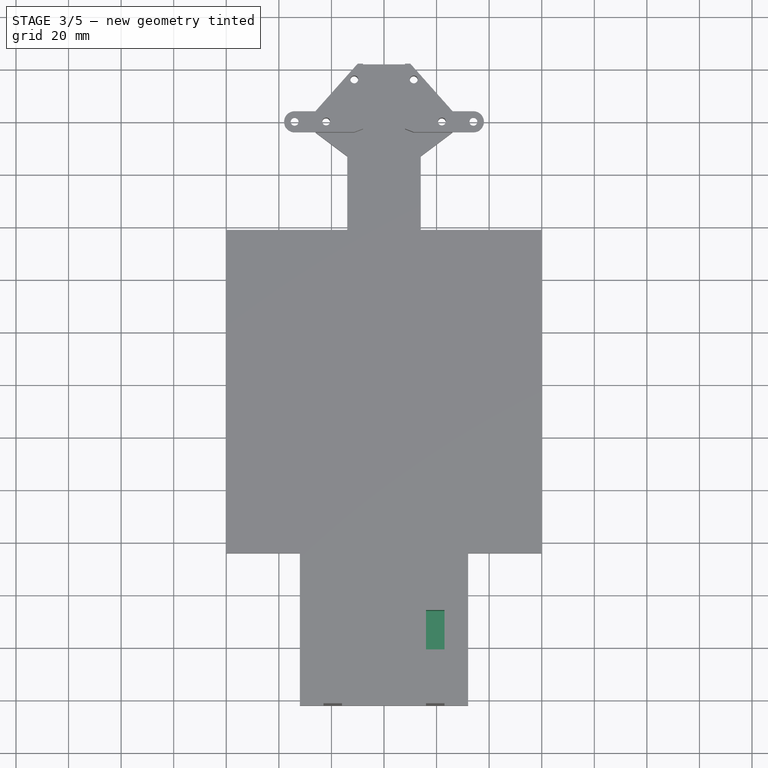
[diagram: stage 3 of 5 — top view after this stage's code; geometry added in this stage tinted green]
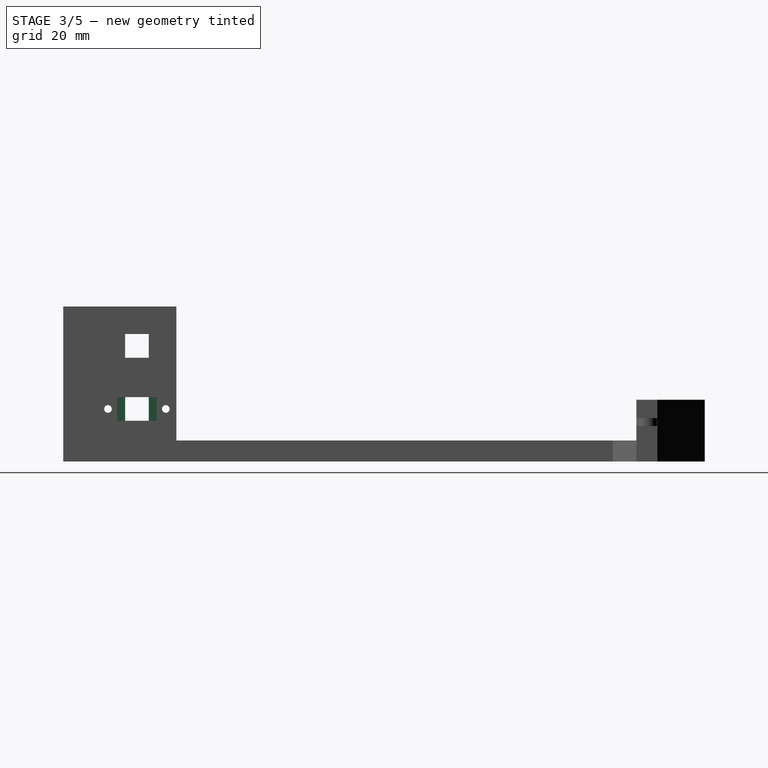
[diagram: stage 3 of 5 — right view after this stage's code; geometry added in this stage tinted green]
FEATURE [Sketcher::SketchObject] Sketch008
  ArcFitTolerance = 1e-06
  AttachmentSupport = -> [Pocket002]
  ExternalGeometry = -> [Pad004,Sketch004]
  FullyConstrained = true
  MakeInternals = false
  MapMode = 5
  Placement = pos=(23,0,0) rot=(0.57735,0.57735,0.57735;2.0944rad)
  expr: Constraints[14] = Sketch005.Constraints[14]
  expr: Constraints[15] = Sketch005.Constraints[15]
  expr: Constraints[16] = Sketch005.Constraints[16]
  expr: Constraints[3] = Sketch005.Constraints[3]
  sketch-geometry (8):
    g0: LineSegment [constr] StartX=-194 StartY=59 StartZ=0 EndX=-194 EndY=8 EndZ=0
    g1: LineSegment [constr] StartX=-179 StartY=32 StartZ=0 EndX=-222 EndY=32 EndZ=0
    g2: LineSegment StartX=-201.5 StartY=15.5 StartZ=0 EndX=-186.5 EndY=15.5 EndZ=0
    g3: LineSegment StartX=-186.5 StartY=15.5 StartZ=0 EndX=-186.5 EndY=24.5 EndZ=0
    g4: LineSegment StartX=-186.5 StartY=24.5 StartZ=0 EndX=-201.5 EndY=24.5 EndZ=0
    g5: LineSegment StartX=-201.5 StartY=24.5 StartZ=0 EndX=-201.5 EndY=15.5 EndZ=0
    g6: GeomPoint [constr] X=-194 Y=20 Z=0
    g7: LineSegment [constr] StartX=-209 StartY=8 StartZ=0 EndX=-209 EndY=59 EndZ=0
  constraints (22):
    c: PointOnObject(g1,g-5)
    c: PointOnObject(g1,g-6)
    c: Horizontal(g1)
    c: DistanceY(g-5,g1) = 24
    c: Coincident(g2,g3)
    c: Coincident(g3,g4)
    c: Coincident(g4,g5)
    c: Coincident(g5,g2)
    c: Horizontal(g2)
    c: Horizontal(g4)
    c: Vertical(g3)
    c: Vertical(g5)
    c: Symmetric(g4,g2,g6)
    c: PointOnObject(g6,g0)
    c: DistanceX(g2,g2) = 15
    c: DistanceY(g5,g5) = 9
    c: Distance(g6,g1) = 12
    c: Coincident(g7,g-7)
    c: PointOnObject(g7,g-4)
    c: Vertical(g7)
    c: Symmetric(g-5,g7,g0)
    c: Symmetric(g-5,g7,g0)
FEATURE [PartDesign::Pocket] Pocket003
  BaseFeature = -> Pocket002
  Direction = (-1,0,0)
  Length = 3
  Length2 = 5
  Profile = -> Sketch008
  ReferenceAxis = -> Sketch008 [N_Axis]
  Refine = true
  Suppressed = false
  Type = 0
FEATURE [Sketcher::SketchObject] Sketch009
  ArcFitTolerance = 1e-06
  AttachmentSupport = -> [Pocket003]
  ExternalGeometry = -> [Sketch005]
  FullyConstrained = true
  MakeInternals = false
  MapMode = 5
  Placement = pos=(20,0,0) rot=(0.57735,0.57735,0.57735;2.0944rad)
  sketch-geometry (5):
    g0: LineSegment [constr] StartX=-194 StartY=15.5 StartZ=0 EndX=-194 EndY=48.5 EndZ=0
    g1: LineSegment StartX=-198.5 StartY=15.5 StartZ=0 EndX=-189.5 EndY=15.5 EndZ=0
    g2: LineSegment StartX=-189.5 StartY=15.5 StartZ=0 EndX=-189.5 EndY=24.5 EndZ=0
    g3: LineSegment StartX=-189.5 StartY=24.5 StartZ=0 EndX=-198.5 EndY=24.5 EndZ=0
    g4: LineSegment StartX=-198.5 StartY=24.5 StartZ=0 EndX=-198.5 EndY=15.5 EndZ=0
  constraints (13):
    c: Symmetric(g-3,g-3,g0)
    c: Symmetric(g-6,g-6,g0)
    c: Coincident(g1,g2)
    c: Coincident(g2,g3)
    c: Coincident(g3,g4)
    c: Coincident(g4,g1)
    c: Horizontal(g1)
    c: Vertical(g2)
    c: Vertical(g4)
    c: PointOnObject(g1,g-3)
    c: PointOnObject(g2,g-4)
    c: Symmetric(g3,g2,g0)
    c: Equal(g3,g4)
FEATURE [PartDesign::Pocket] Pocket004
  BaseFeature = -> Pocket003
  Direction = (-1,0,0)
  Length = 0
  Length2 = 5
  Profile = -> Sketch009
  ReferenceAxis = -> Sketch009 [N_Axis]
  Refine = true
  Suppressed = false
  Type = 3
  UpToFace = -> Pocket003 [Face34]
FEATURE [Sketcher::SketchObject] Sketch010
  ArcFitTolerance = 1e-06
  AttachmentSupport = -> [Pocket004]
  ExternalGeometry = -> [Sketch005]
  FullyConstrained = true
  MakeInternals = false
  MapMode = 5
  Placement = pos=(23,0,0) rot=(0.57735,0.57735,0.57735;2.0944rad)
  expr: Constraints[0] = Sketch007.Constraints[0]
  expr: Constraints[10] = Sketch007.Constraints[10]
  sketch-geometry (6):
    g0: Circle CenterX=-183 CenterY=20 CenterZ=0 NormalX=0 NormalY=0 NormalZ=1 AngleXU=0 Radius=1.45
    g1: Circle CenterX=-205 CenterY=20 CenterZ=0 NormalX=0 NormalY=0 NormalZ=1 AngleXU=0 Radius=1.45
    g2: LineSegment [constr] StartX=-183 StartY=20 StartZ=0 EndX=-205 EndY=20 EndZ=0
    g3: GeomPoint X=-186.5 Y=20 Z=0
    g4: GeomPoint X=-201.5 Y=20 Z=0
    g5: GeomPoint X=-194 Y=20 Z=0
  constraints (11):
    c: Diameter(g0) = 2.9
    c: Equal(g0,g1)
    c: Coincident(g2,g0)
    c: Coincident(g2,g1)
    c: Symmetric(g-3,g-3,g2)
    c: PointOnObject(g3,g2)
    c: PointOnObject(g3,g-3)
    c: PointOnObject(g4,g-4)
    c: Symmetric(g3,g4,g5)
    c: Symmetric(g0,g1,g5)
    c: Distance(g0,g-3) = 3.5
FEATURE [PartDesign::Pocket] Pocket005
  BaseFeature = -> Pocket004
  Direction = (-1,0,0)
  Length = 0
  Length2 = 5
  Profile = -> Sketch010
  ReferenceAxis = -> Sketch010 [N_Axis]
  Refine = true
  Suppressed = false
  Type = 3
  UpToFace = -> Pocket004 [Face34]
FEATURE [Sketcher::SketchObject] Sketch011
  ArcFitTolerance = 1e-06
  AttachmentSupport = -> [Pocket005]
  ExternalGeometry = -> [Pad004,Sketch004]
  FullyConstrained = true
  MakeInternals = false
  MapMode = 5
  Placement = pos=(23,0,0) rot=(0.57735,0.57735,0.57735;2.0944rad)
  expr: Constraints[3] = Sketch005.Constraints[3]
  sketch-geometry (8):
    g0: LineSegment [constr] StartX=-194 StartY=59 StartZ=0 EndX=-194 EndY=8 EndZ=0
    g1: LineSegment [constr] StartX=-179 StartY=32 StartZ=0 EndX=-222 EndY=32 EndZ=0
    g2: LineSegment [constr] StartX=-209 StartY=8 StartZ=0 EndX=-209 EndY=59 EndZ=0
    g3: GeomPoint X=-194 Y=44 Z=0
    g4: LineSegment StartX=-201.5 StartY=37 StartZ=0 EndX=-186.5 EndY=37 EndZ=0
    g5: LineSegment StartX=-186.5 StartY=37 StartZ=0 EndX=-186.5 EndY=59 EndZ=0
    g6: LineSegment StartX=-186.5 StartY=59 StartZ=0 EndX=-201.5 EndY=59 EndZ=0
    g7: LineSegment StartX=-201.5 StartY=59 StartZ=0 EndX=-201.5 EndY=37 EndZ=0
  constraints (21):
    c: PointOnObject(g1,g-5)
    c: PointOnObject(g1,g-6)
    c: Horizontal(g1)
    c: DistanceY(g-5,g1) = 24
    c: Coincident(g2,g-7)
    c: PointOnObject(g2,g-4)
    c: Vertical(g2)
    c: Symmetric(g-5,g2,g0)
    c: Symmetric(g-5,g2,g0)
    c: PointOnObject(g3,g0)
    c: Distance(g3,g1) = 12
    c: Coincident(g4,g5)
    c: Coincident(g5,g6)
    c: Coincident(g6,g7)
    c: Coincident(g7,g4)
    c: Vertical(g5)
    c: PointOnObject(g5,g-4)
    c: Symmetric(g4,g4,g0)
    c: Symmetric(g5,g6,g0)
    c: DistanceX(g4,g4) = 15
    c: Distance(g3,g4) = 7
FEATURE [PartDesign::Pocket] Pocket006
  BaseFeature = -> Pocket005
  Direction = (-1,0,0)
  Length = 0
  Length2 = 5
  Profile = -> Sketch011
  ReferenceAxis = -> Sketch011 [N_Axis]
  Refine = true
  Suppressed = false
  Type = 3
  UpToFace = -> Pocket005 [Face34]
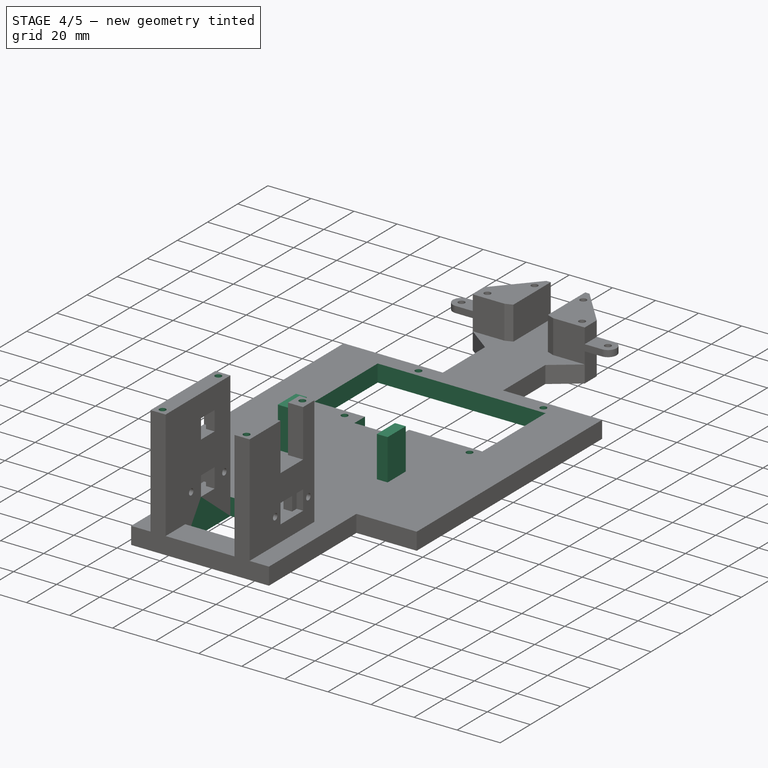
[diagram: stage 4 of 5 — iso view after this stage's code; geometry added in this stage tinted green]
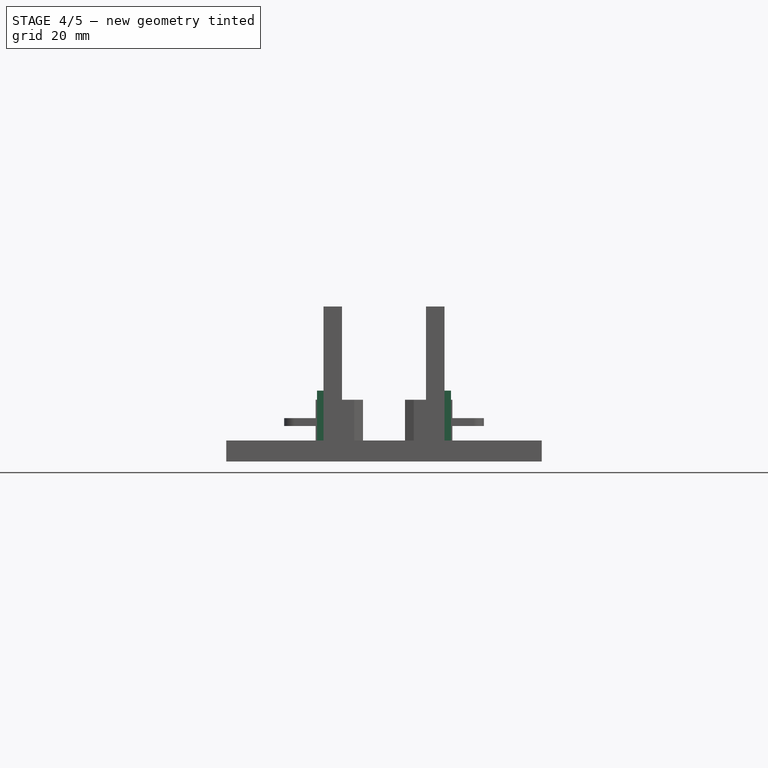
[diagram: stage 4 of 5 — front view after this stage's code; geometry added in this stage tinted green]
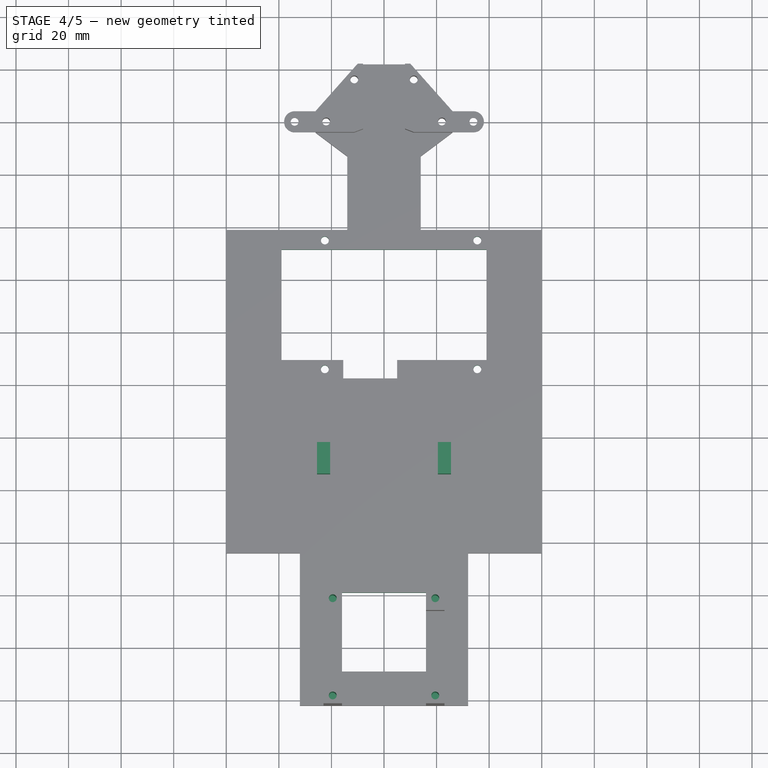
[diagram: stage 4 of 5 — top view after this stage's code; geometry added in this stage tinted green]
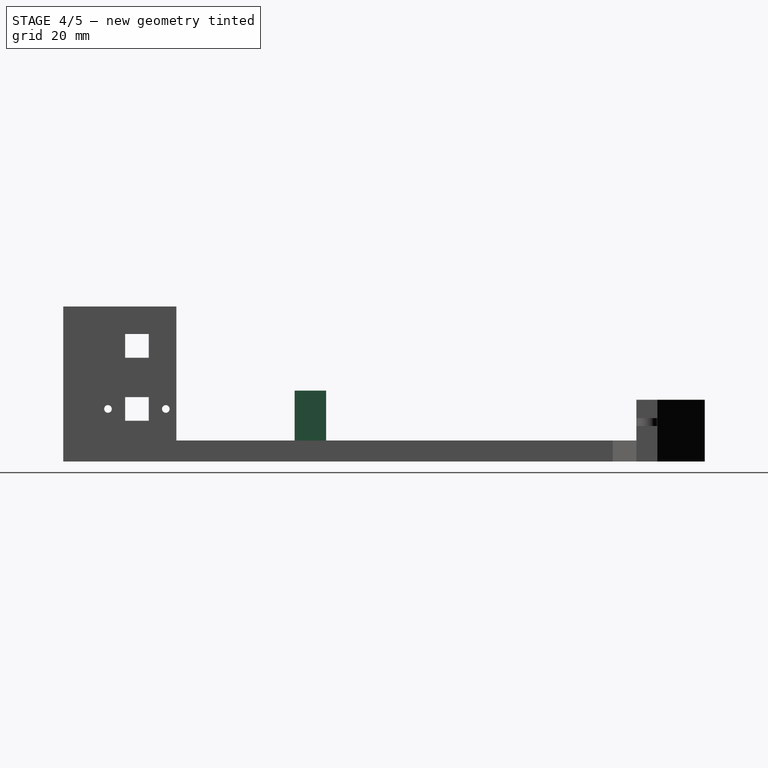
[diagram: stage 4 of 5 — right view after this stage's code; geometry added in this stage tinted green]
FEATURE [Sketcher::SketchObject] Sketch012
  ArcFitTolerance = 1e-06
  AttachmentSupport = -> [Pocket006]
  ExternalGeometry = -> [Sketch004]
  FullyConstrained = true
  MakeInternals = false
  MapMode = 5
  Placement = pos=(0,0,59) rot=(0,0,1;0rad)
  sketch-geometry (6):
    g0: Circle CenterX=-19.5 CenterY=-182 CenterZ=0 NormalX=0 NormalY=0 NormalZ=1 AngleXU=0 Radius=1.5
    g1: Circle CenterX=-19.5 CenterY=-219 CenterZ=0 NormalX=0 NormalY=0 NormalZ=1 AngleXU=0 Radius=1.5
    g2: LineSegment [constr] StartX=-19.5 StartY=-179 StartZ=0 EndX=-19.5 EndY=-222 EndZ=0
    g3: GeomPoint X=-19.5 Y=-200.5 Z=0
    g4: Circle CenterX=19.5 CenterY=-182 CenterZ=0 NormalX=0 NormalY=0 NormalZ=1 AngleXU=0 Radius=1.5
    g5: Circle CenterX=19.5 CenterY=-219 CenterZ=0 NormalX=0 NormalY=0 NormalZ=1 AngleXU=0 Radius=1.5
  constraints (12):
    c: Diameter(g0) = 3
    c: Diameter(g1) = 3
    c: Symmetric(g-3,g-3,g2)
    c: Symmetric(g-8,g-8,g2)
    c: PointOnObject(g0,g2)
    c: Symmetric(g2,g2,g3)
    c: Symmetric(g0,g1,g3)
    c: Distance(g0,g-3) = 3
    c: Equal(g0,g4)
    c: Symmetric(g0,g4,g-2)
    c: Equal(g5,g1)
    c: Symmetric(g1,g5,g-2)
FEATURE [PartDesign::Pocket] Pocket007
  BaseFeature = -> Pocket006
  Direction = (0,0,-1)
  Length = 27
  Length2 = 5
  Profile = -> Sketch012
  ReferenceAxis = -> Sketch012 [N_Axis]
  Refine = true
  Suppressed = false
  Type = 0
FEATURE [Sketcher::SketchObject] Sketch013
  ArcFitTolerance = 1e-06
  AttachmentSupport = -> [Pocket007]
  ExternalGeometry = -> [Sketch004]
  FullyConstrained = true
  MakeInternals = false
  MapMode = 5
  Placement = pos=(0,0,8) rot=(0,0,1;0rad)
  sketch-geometry (4):
    g0: LineSegment StartX=16 StartY=-179 StartZ=0 EndX=-16 EndY=-179 EndZ=0
    g1: LineSegment StartX=-16 StartY=-179 StartZ=0 EndX=-16 EndY=-209 EndZ=0
    g2: LineSegment StartX=-16 StartY=-209 StartZ=0 EndX=16 EndY=-209 EndZ=0
    g3: LineSegment StartX=16 StartY=-209 StartZ=0 EndX=16 EndY=-179 EndZ=0
  constraints (10):
    c: Coincident(g0,g1)
    c: Coincident(g1,g2)
    c: Coincident(g2,g3)
    c: Coincident(g3,g0)
    c: Horizontal(g0)
    c: Horizontal(g2)
    c: Vertical(g1)
    c: Vertical(g3)
    c: Coincident(g0,g-4)
    c: Coincident(g1,g-3)
FEATURE [PartDesign::Pocket] Pocket008
  BaseFeature = -> Pocket007
  Direction = (0,0,-1)
  Length = 0
  Length2 = 5
  Profile = -> Sketch013
  ReferenceAxis = -> Sketch013 [N_Axis]
  Refine = true
  Suppressed = false
  Type = 3
  UpToFace = -> Pocket007 [Face4]
FEATURE [Sketcher::SketchObject] Sketch014
  ArcFitTolerance = 1e-06
  AttachmentSupport = -> [Pocket008]
  ExternalGeometry = -> [Pocket008]
  FullyConstrained = true
  MakeInternals = false
  MapMode = 5
  Placement = pos=(0,0,8) rot=(0,0,1;0rad)
  sketch-geometry (17):
    g0: LineSegment StartX=-39 StartY=-90.5 StartZ=0 EndX=-39 EndY=-48.5 EndZ=0
    g1: LineSegment StartX=39 StartY=-48.5 StartZ=0 EndX=39 EndY=-90.5 EndZ=0
    g2: GeomPoint [constr] X=0 Y=-69.5 Z=0
    g3: Circle CenterX=-22.5 CenterY=-94 CenterZ=0 NormalX=0 NormalY=0 NormalZ=1 AngleXU=0 Radius=1.5
    g4: Circle CenterX=35.5 CenterY=-94 CenterZ=0 NormalX=0 NormalY=0 NormalZ=1 AngleXU=0 Radius=1.5
    g5: LineSegment [constr] StartX=-22.5 StartY=-94 StartZ=0 EndX=35.5 EndY=-94 EndZ=0
    g6: Circle CenterX=-22.5 CenterY=-45 CenterZ=0 NormalX=0 NormalY=0 NormalZ=1 AngleXU=0 Radius=1.5
    g7: Circle CenterX=35.5 CenterY=-45 CenterZ=0 NormalX=0 NormalY=0 NormalZ=1 AngleXU=0 Radius=1.5
    g8: LineSegment [constr] StartX=-22.5 StartY=-94 StartZ=0 EndX=-22.5 EndY=-45 EndZ=0
    g9: LineSegment [constr] StartX=-22.5 StartY=-45 StartZ=0 EndX=35.5 EndY=-45 EndZ=0
    g10: LineSegment [constr] StartX=35.5 StartY=-94 StartZ=0 EndX=35.5 EndY=-45 EndZ=0
    g11: LineSegment StartX=-39 StartY=-90.5 StartZ=0 EndX=-15.5 EndY=-90.5 EndZ=0
    g12: LineSegment StartX=-15.5 StartY=-90.5 StartZ=0 EndX=-15.5 EndY=-97.5 EndZ=0
    g13: LineSegment StartX=-15.5 StartY=-97.5 StartZ=0 EndX=5 EndY=-97.5 EndZ=0
    g14: LineSegment StartX=5 StartY=-97.5 StartZ=0 EndX=5 EndY=-90.5 EndZ=0
    g15: LineSegment StartX=5 StartY=-90.5 StartZ=0 EndX=39 EndY=-90.5 EndZ=0
    g16: LineSegment StartX=-39 StartY=-48.5 StartZ=0 EndX=39 EndY=-48.5 EndZ=0
  constraints (45):
    c: Vertical(g0)
    c: Vertical(g1)
    c: Symmetric(g1,g0,g2)
    c: PointOnObject(g2,g-2)
    c: Distance(g0) = 42
    c: Equal(g0,g1)
    c: Diameter(g3) = 3
    c: DistanceY(g3,g0) = 3.5
    c: Equal(g3,g4)
    c: DistanceX(g3,g4) = 58
    c: Coincident(g5,g3)
    c: Coincident(g5,g4)
    c: Horizontal(g5)
    c: Equal(g3,g6)
    c: Equal(g6,g7)
    c: Coincident(g8,g3)
    c: Coincident(g8,g6)
    c: Vertical(g8)
    c: DistanceY(g3,g6) = 49
    c: Coincident(g9,g6)
    c: Coincident(g9,g7)
    c: Horizontal(g9)
    c: Coincident(g10,g4)
    c: Coincident(g10,g7)
    c: Vertical(g10)
    c: Distance(g6,g-3) = 4
    c: Coincident(g11,g0)
    c: Horizontal(g11)
    c: Coincident(g12,g11)
    c: Vertical(g12)
    c: Coincident(g13,g12)
    c: Horizontal(g13)
    c: Coincident(g14,g13)
    c: Vertical(g14)
    c: Coincident(g15,g14)
    c: Coincident(g15,g1)
    c: Horizontal(g15)
    c: DistanceX(g13,g13) = 20.5
    c: Coincident(g16,g0)
    c: Coincident(g16,g1)
    c: Horizontal(g16)
    c: DistanceX(g15,g15) = 34
    c: DistanceY(g12,g12) = 7
    c: DistanceX(g16,g16) = 78
    c: Distance(g0,g8) = 16.5
FEATURE [PartDesign::Pocket] Pocket009
  BaseFeature = -> Pocket008
  Direction = (0,0,-1)
  Length = 0
  Length2 = 5
  Profile = -> Sketch014
  ReferenceAxis = -> Sketch014 [N_Axis]
  Refine = true
  Suppressed = false
  Type = 3
  UpToFace = -> Pocket008 [Face4]
FEATURE [Sketcher::SketchObject] Sketch015
  ArcFitTolerance = 1e-06
  AttachmentSupport = -> [Pocket009]
  ExternalGeometry = -> [Pocket009]
  FullyConstrained = true
  MakeInternals = false
  MapMode = 5
  Placement = pos=(0,0,8) rot=(0,0,1;0rad)
  sketch-geometry (8):
    g0: LineSegment StartX=-25.5 StartY=-122 StartZ=0 EndX=-20.5 EndY=-122 EndZ=0
    g1: LineSegment StartX=-20.5 StartY=-122 StartZ=0 EndX=-20.5 EndY=-134 EndZ=0
    g2: LineSegment StartX=-20.5 StartY=-134 StartZ=0 EndX=-25.5 EndY=-134 EndZ=0
    g3: LineSegment StartX=-25.5 StartY=-134 StartZ=0 EndX=-25.5 EndY=-122 EndZ=0
    g4: LineSegment StartX=20.5 StartY=-122 StartZ=0 EndX=25.5 EndY=-122 EndZ=0
    g5: LineSegment StartX=25.5 StartY=-122 StartZ=0 EndX=25.5 EndY=-134 EndZ=0
    g6: LineSegment StartX=25.5 StartY=-134 StartZ=0 EndX=20.5 EndY=-134 EndZ=0
    g7: LineSegment StartX=20.5 StartY=-134 StartZ=0 EndX=20.5 EndY=-122 EndZ=0
  constraints (22):
    c: Coincident(g0,g1)
    c: Coincident(g1,g2)
    c: Coincident(g2,g3)
    c: Coincident(g3,g0)
    c: Horizontal(g0)
    c: Horizontal(g2)
    c: Vertical(g1)
    c: Vertical(g3)
    c: Distance(g3) = 12
    c: Distance(g0) = 5
    c: Coincident(g4,g5)
    c: Coincident(g5,g6)
    c: Coincident(g6,g7)
    c: Coincident(g7,g4)
    c: Horizontal(g4)
    c: Horizontal(g6)
    c: Vertical(g5)
    c: Vertical(g7)
    c: Symmetric(g0,g4,g-2)
    c: Symmetric(g1,g6,g-2)
    c: Distance(g2,g5) = 51
    c: DistanceY(g-3,g2) = 30
FEATURE [PartDesign::Pad] Pad005
  BaseFeature = -> Pocket009
  Direction = (0,0,1)
  Length = 19
  Length2 = 10
  Profile = -> Sketch015
  ReferenceAxis = -> Sketch015 [N_Axis]
  Refine = true
  Suppressed = false
  Type = 0
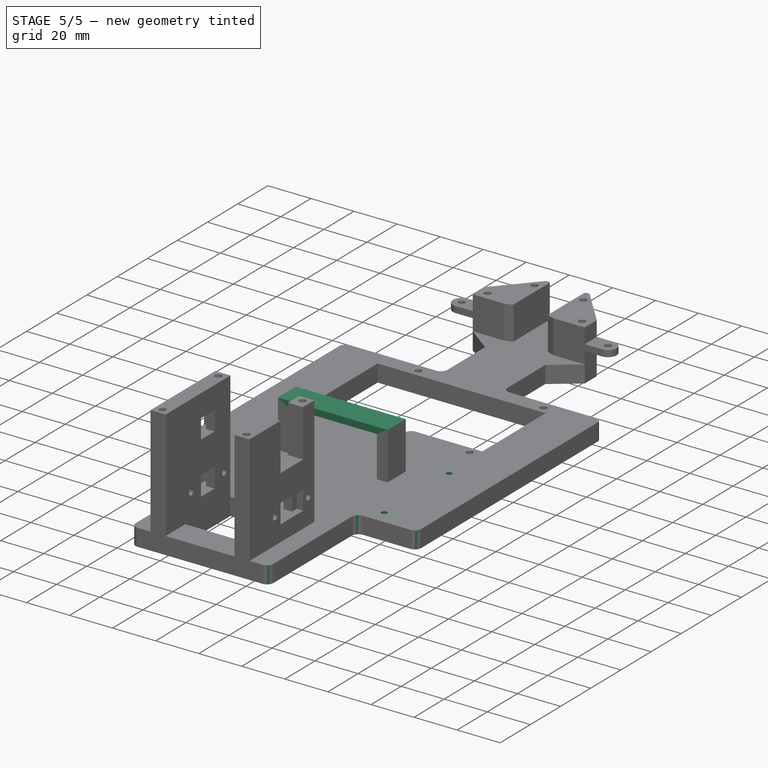
[diagram: stage 5 of 5 — iso view after this stage's code; geometry added in this stage tinted green]
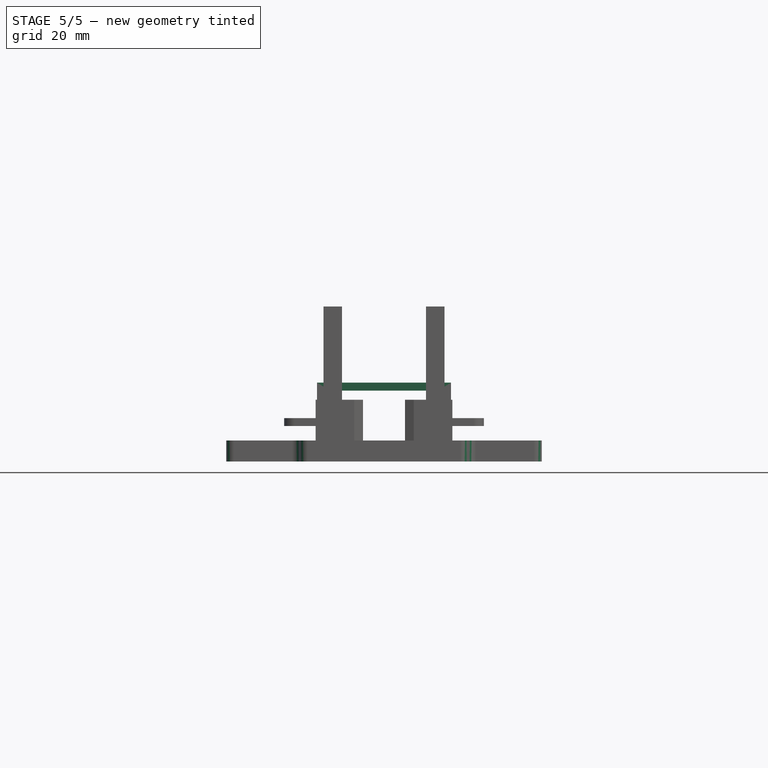
[diagram: stage 5 of 5 — front view after this stage's code; geometry added in this stage tinted green]
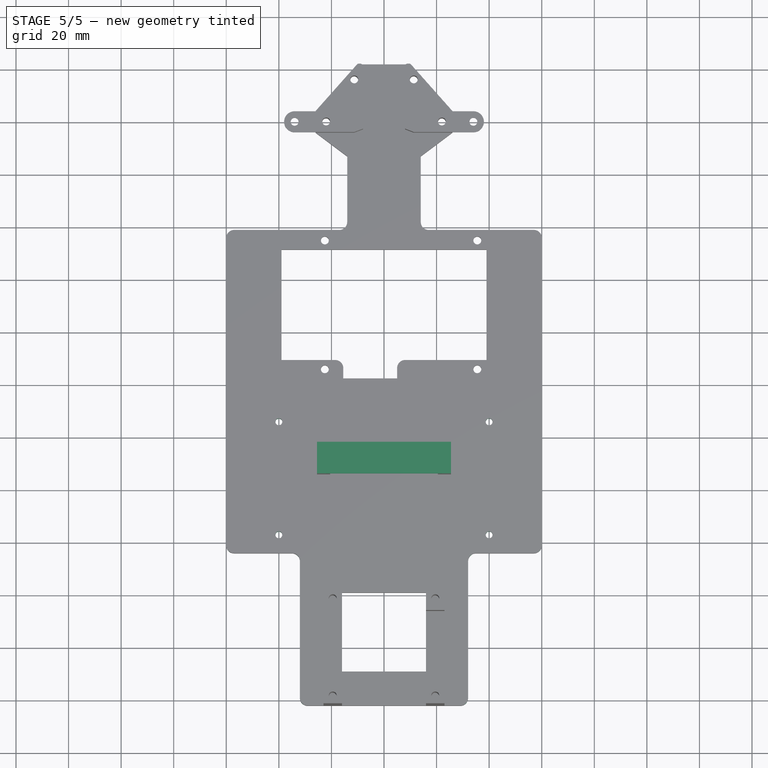
[diagram: stage 5 of 5 — top view after this stage's code; geometry added in this stage tinted green]
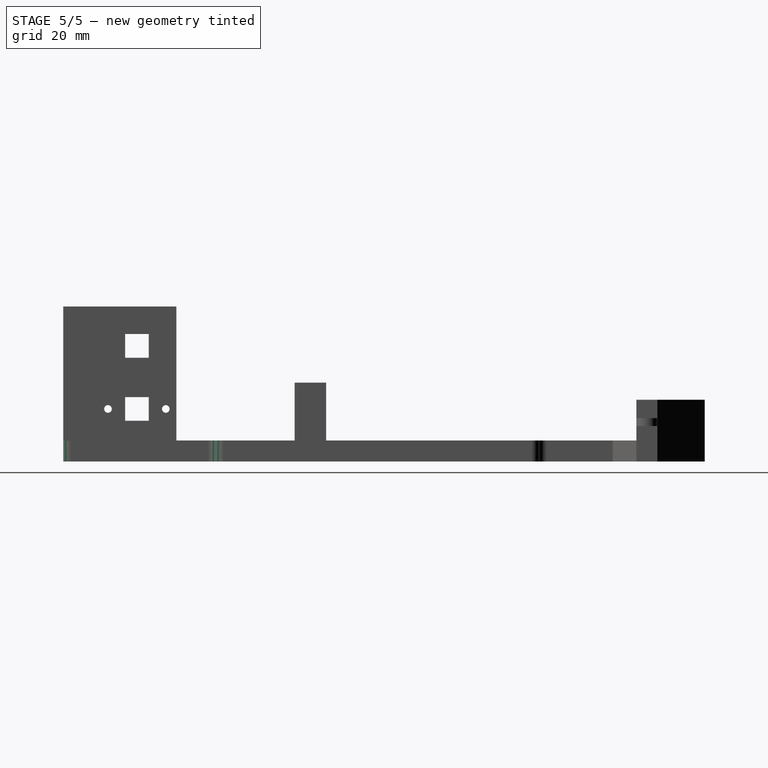
[diagram: stage 5 of 5 — right view after this stage's code; geometry added in this stage tinted green]
FEATURE [Sketcher::SketchObject] Sketch016
  ArcFitTolerance = 1e-06
  AttachmentSupport = -> [Pad005]
  ExternalGeometry = -> [Sketch015]
  FullyConstrained = true
  MakeInternals = false
  MapMode = 5
  Placement = pos=(0,0,27) rot=(0,0,1;0rad)
  sketch-geometry (4):
    g0: LineSegment StartX=25.5 StartY=-122 StartZ=0 EndX=-25.5 EndY=-122 EndZ=0
    g1: LineSegment StartX=-25.5 StartY=-122 StartZ=0 EndX=-25.5 EndY=-134 EndZ=0
    g2: LineSegment StartX=-25.5 StartY=-134 StartZ=0 EndX=25.5 EndY=-134 EndZ=0
    g3: LineSegment StartX=25.5 StartY=-134 StartZ=0 EndX=25.5 EndY=-122 EndZ=0
  constraints (10):
    c: Coincident(g0,g1)
    c: Coincident(g1,g2)
    c: Coincident(g2,g3)
    c: Coincident(g3,g0)
    c: Horizontal(g0)
    c: Horizontal(g2)
    c: Vertical(g1)
    c: Vertical(g3)
    c: Coincident(g0,g-4)
    c: Coincident(g1,g-3)
FEATURE [PartDesign::Pad] Pad006
  BaseFeature = -> Pad005
  Direction = (0,0,1)
  Length = 3
  Length2 = 10
  Profile = -> Sketch016
  ReferenceAxis = -> Sketch016 [N_Axis]
  Refine = true
  Suppressed = false
  Type = 0
FEATURE [Sketcher::SketchObject] Sketch017
  ArcFitTolerance = 1e-06
  AttachmentSupport = -> [Pad006]
  ExternalGeometry = -> [Pad006]
  FullyConstrained = true
  MakeInternals = false
  MapMode = 5
  Placement = pos=(0,0,8) rot=(0,0,1;0rad)
  sketch-geometry (5):
    g0: Circle CenterX=-40 CenterY=-114 CenterZ=0 NormalX=0 NormalY=0 NormalZ=1 AngleXU=0 Radius=1.3
    g1: Circle CenterX=40 CenterY=-114 CenterZ=0 NormalX=0 NormalY=0 NormalZ=1 AngleXU=0 Radius=1.3
    g2: Circle CenterX=-40 CenterY=-157 CenterZ=0 NormalX=0 NormalY=0 NormalZ=1 AngleXU=0 Radius=1.3
    g3: Circle CenterX=40 CenterY=-157 CenterZ=0 NormalX=0 NormalY=0 NormalZ=1 AngleXU=0 Radius=1.3
    g4: LineSegment [constr] StartX=-40 StartY=-114 StartZ=0 EndX=-40 EndY=-157 EndZ=0
  constraints (12):
    c: Diameter(g0) = 2.6
    c: Equal(g0,g1)
    c: Equal(g1,g2)
    c: Equal(g2,g3)
    c: Symmetric(g0,g1,g-2)
    c: Symmetric(g2,g3,g-2)
    c: Coincident(g4,g0)
    c: Coincident(g4,g2)
    c: Vertical(g4)
    c: DistanceX(g0,g1) = 80
    c: DistanceY(g2,g0) = 43
    c: DistanceY(g-3,g2) = 7
FEATURE [PartDesign::Pocket] Pocket010
  BaseFeature = -> Pad006
  Direction = (0,0,-1)
  Length = 0
  Length2 = 5
  Profile = -> Sketch017
  ReferenceAxis = -> Sketch017 [N_Axis]
  Refine = true
  Suppressed = false
  Type = 3
  UpToFace = -> Pad006 [Face6]
FEATURE [PartDesign::Fillet] Fillet
  Base = -> Pocket010 [Edge89,Edge87,Edge81,Edge85]
  BaseFeature = -> Pocket010
  Radius = 1
  Refine = true
  SupportTransform = false
  Suppressed = false
  UseAllEdges = false
FEATURE [PartDesign::Fillet] Fillet001
  Base = -> Fillet [Edge77,Edge111,Edge81,Edge125,Edge85,Edge129,Edge89,Edge134,Edge97,Edge103,Edge192,Edge179]
  BaseFeature = -> Fillet
  Radius = 3
  Refine = true
  SupportTransform = false
  Suppressed = false
  UseAllEdges = false
FEATURE [PartDesign::Body] Body  label="ChassisBody"
  AllowCompound = false
  Group = -> [Binder,Sketch,Pad,Sketch001,Pad001,Sketch002,Pad002,Sketch003,Pad003,Sketch004,Pad004,Sketch005,Pocket,Sketch006,Pocket001,Sketch007,Pocket002,Sketch008,Pocket003,Sketch009,Pocket004,Sketch010,Pocket005,Sketch011,Pocket006,Sketch012,Pocket007,Sketch013,Pocket008,Sketch014,Pocket009,Sketch015,Pad005,Sketch016,Pad006,Sketch017,Pocket010,Fillet,Fillet001]
  Origin = -> Origin001
  Tip = -> Fillet001
FEATURE [App::Part] Part  label="ChassisPart"
  Group = -> [Body]
  Origin = -> Origin

RESOLVED EXTERNAL PARTS (link-assembly join: the EXTERNAL_REF files above that resolve inside this repo's crawl, each included once):
---- part ../Models/SteeringAckermannModel.FCStd = doc fcstd_253a2b1971f8 ----
FCSTD DOCUMENT  (FreeCAD 1.0R39109 (Git))
Label: SteeringAckermannModel
License: All rights reserved
LicenseURL: https://en.wikipedia.org/wiki/All_rights_reserved
objects: Sketcher::SketchObject×2, Spreadsheet::Sheet×1, App::Part×1
note: 4 computed .brp shape members not serialized (recipe doc carries the construction recipe); baked Part::Feature solids carry a one-line shape summary decoded from their .brp

FEATURE [Sketcher::SketchObject] Sketch001  label="SteeringAckermannModel"
  ArcFitTolerance = 1e-06
  AttachmentSupport = -> [XY_Plane001]
  FullyConstrained = true
  MakeInternals = false
  MapMode = 5
  expr: .Constraints.BackTrackLength = <<SteeringAckermannSpreadsheet>>.track
  expr: .Constraints.LeftTransferLinkageLength = <<SteeringAckermannSpreadsheet>>.transferlinkagelength
  expr: .Constraints.LeftWheelDepth = <<SteeringAckermannSpreadsheet>>.wheeldepth
  expr: .Constraints.LeftWheelDiameter = <<SteeringAckermannSpreadsheet>>.wheeldia
  expr: .Constraints.LeftWheelLinkageAngle = <<SteeringAckermannSpreadsheet>>.wheellinkageangle
  expr: .Constraints.LeftWheelLinkageLength = <<SteeringAckermannSpreadsheet>>.wheellinkagelength
  expr: .Constraints.LeftWheelLinkageOffset = <<SteeringAckermannSpreadsheet>>.wheellinkageoffset
  expr: .Constraints.RightTransferLinkageLength = <<SteeringAckermannSpreadsheet>>.transferlinkagelength
  expr: .Constraints.RightWheelDepth = <<SteeringAckermannSpreadsheet>>.wheeldepth
  expr: .Constraints.RightWheelDiameter = <<SteeringAckermannSpreadsheet>>.wheeldia
  expr: .Constraints.RightWheelLinkageAngle = <<SteeringAckermannSpreadsheet>>.wheellinkageangle
  expr: .Constraints.RightWheelLinkageLength = <<SteeringAckermannSpreadsheet>>.wheellinkagelength
  expr: .Constraints.RightWheelLinkageOffset = <<SteeringAckermannSpreadsheet>>.wheellinkageoffset
  expr: .Constraints.ServoLinkageLength = <<SteeringAckermannSpreadsheet>>.servolinkagelength
  expr: .Constraints.ServoLinkageSeperation = <<SteeringAckermannSpreadsheet>>.servolinkagesep
  expr: .Constraints.ServoPositionOffset = <<SteeringAckermannSpreadsheet>>.servoposoffset
  expr: .Constraints.TrackAdj = Spreadsheet.trackadj
  expr: .Constraints.Wheelbase = <<SteeringAckermannSpreadsheet>>.wheelbase
  sketch-geometry (32):
    g0: LineSegment StartX=-34 StartY=0 StartZ=0 EndX=34 EndY=0 EndZ=0
    g1: LineSegment StartX=0 StartY=0 StartZ=0 EndX=0 EndY=-194 EndZ=0
    g2: GeomPoint [constr] X=0 Y=-4 Z=0
    g3: LineSegment StartX=0 StartY=-4 StartZ=0 EndX=8.69964 EndY=-12.2654 EndZ=0
    g4: LineSegment StartX=5.25574 StartY=-15.8902 StartZ=0 EndX=12.1435 EndY=-8.64052 EndZ=0
    g5: LineSegment StartX=5.25574 StartY=-15.8902 StartZ=0 EndX=-25.9767 EndY=-8.92334 EndZ=0
    g6: LineSegment StartX=-34 StartY=0 StartZ=0 EndX=-25.9767 EndY=-8.92334 EndZ=0
    g7: LineSegment StartX=-34 StartY=0 StartZ=0 EndX=-42.0301 EndY=-11.4681 EndZ=0
    g8: LineSegment StartX=12.1435 StartY=-8.64052 StartZ=0 EndX=44.0733 EndY=-6.5214 EndZ=0
    g9: LineSegment StartX=44.0733 StartY=-6.5214 StartZ=0 EndX=34 EndY=0 EndZ=0
    g10: LineSegment StartX=34 StartY=0 StartZ=0 EndX=44.0638 EndY=9.73246 EndZ=0
    g11: LineSegment StartX=-25.9767 StartY=-37.3581 StartZ=0 EndX=-71.8492 EndY=-5.23781 EndZ=0
    g12: LineSegment StartX=-71.8492 StartY=-5.23781 StartZ=0 EndX=-58.0834 EndY=14.4218 EndZ=0
    g13: LineSegment StartX=-58.0834 StartY=14.4218 StartZ=0 EndX=-12.2109 EndY=-17.6984 EndZ=0
    g14: LineSegment StartX=-12.2109 StartY=-17.6984 StartZ=0 EndX=-25.9767 EndY=-37.3581 EndZ=0
    g15: GeomPoint [constr] X=-42.0301 Y=-11.4681 Z=0
    g16: LineSegment StartX=54.9026 StartY=-18.7372 StartZ=0 EndX=15.9728 EndY=21.5179 EndZ=0
    g17: LineSegment StartX=15.9728 StartY=21.5179 StartZ=0 EndX=33.2249 EndY=38.2021 EndZ=0
    g18: LineSegment StartX=33.2249 StartY=38.2021 StartZ=0 EndX=72.1548 EndY=-2.05296 EndZ=0
    g19: LineSegment StartX=72.1548 StartY=-2.05296 StartZ=0 EndX=54.9026 EndY=-18.7372 EndZ=0
    g20: GeomPoint [constr] X=44.0638 Y=9.73246 Z=0
    g21: LineSegment StartX=-48 StartY=-194 StartZ=0 EndX=48 EndY=-194 EndZ=0
    g22: LineSegment StartX=-60 StartY=-222 StartZ=0 EndX=-60 EndY=-166 EndZ=0
    g23: LineSegment StartX=-60 StartY=-166 StartZ=0 EndX=-36 EndY=-166 EndZ=0
    g24: LineSegment StartX=-36 StartY=-166 StartZ=0 EndX=-36 EndY=-222 EndZ=0
    g25: LineSegment StartX=-36 StartY=-222 StartZ=0 EndX=-60 EndY=-222 EndZ=0
    g26: GeomPoint [constr] X=-48 Y=-194 Z=0
    g27: LineSegment StartX=36 StartY=-222 StartZ=0 EndX=36 EndY=-166 EndZ=0
    g28: LineSegment StartX=36 StartY=-166 StartZ=0 EndX=60 EndY=-166 EndZ=0
    g29: LineSegment StartX=60 StartY=-166 StartZ=0 EndX=60 EndY=-222 EndZ=0
    g30: LineSegment StartX=60 StartY=-222 StartZ=0 EndX=36 EndY=-222 EndZ=0
    g31: GeomPoint [constr] X=48 Y=-194 Z=0
  constraints (81):
    c: Distance(g1) = 194  'Wheelbase'
    c: Distance(g0) = 68  'TrackAdj'
    c: DistanceY(g1,g2) = -4  'ServoPositionOffset'
    c: Distance(g3) = 12  'ServoLinkageLength'
    c: Distance(g4) = 10  'ServoLinkageSeperation'
    c: Distance(g5) = 32  'LeftTransferLinkageLength'
    c: Distance(g6) = 12  'LeftWheelLinkageLength'
    c: Distance(g7) = 14  'LeftWheelLinkageOffset'
    c: Angle(g7,g6) = 1.34321  'LeftWheelLinkageAngle'
    c: Distance(g13) = 56  'LeftWheelDiameter'
    c: Distance(g14) = 24  'LeftWheelDepth'
    c: Distance(g8) = 32  'RightTransferLinkageLength'
    c: Distance(g9) = 12  'RightWheelLinkageLength'
    c: Distance(g10) = 14  'RightWheelLinkageOffset'
    c: Angle(g9,g10) = 1.34321  'RightWheelLinkageAngle'
    c: Distance(g16) = 56  'RightWheelDiameter'
    c: Distance(g19) = 24  'RightWheelDepth'
    c: Angle(g1,g3) = 0.810991  'SteeringAngle'
    c: Distance(g21) = 96  'BackTrackLength'
    c: Coincident(g5,g4)
    c: Horizontal(g0)
    c: Symmetric(g0,g0,g-1)
    c: Coincident(g1,g-1)
    c: PointOnObject(g1,g-2)
    c: PointOnObject(g2,g-2)
    c: Coincident(g3,g2)
    c: Perpendicular(g3,g4)
    c: Symmetric(g4,g4,g3)
    c: Coincident(g6,g0)
    c: Coincident(g6,g5)
    c: Coincident(g7,g0)
    c: Coincident(g8,g4)
    c: Coincident(g9,g8)
    c: Coincident(g9,g0)
    c: Coincident(g10,g0)
    c: Coincident(g11,g12)
    c: Coincident(g12,g13)
    c: Coincident(g13,g14)
    c: Coincident(g14,g11)
    c: Symmetric(g12,g11,g15)
    c: Coincident(g15,g7)
    c: Perpendicular(g13,g7)
    c: Perpendicular(g14,g13)
    c: Perpendicular(g12,g13)
    c: Perpendicular(g11,g7)
    c: Coincident(g16,g17)
    c: Coincident(g17,g18)
    c: Coincident(g18,g19)
    c: Coincident(g19,g16)
    c: Symmetric(g17,g16,g20)
    c: Coincident(g20,g10)
    c: Perpendicular(g16,g10)
    c: Perpendicular(g19,g16)
    c: Perpendicular(g17,g16)
    c: Perpendicular(g18,g10)
    c: Symmetric(g21,g21,g1)
    c: PointOnObject(g1,g21)
    c: Coincident(g22,g23)
    c: Coincident(g23,g24)
    c: Coincident(g24,g25)
    c: Coincident(g25,g22)
    c: Horizontal(g23)
    c: Horizontal(g25)
    c: Vertical(g22)
    c: Vertical(g24)
    c: Symmetric(g23,g22,g26)
    c: Coincident(g26,g21)
    c: Coincident(g27,g28)
    c: Coincident(g28,g29)
    c: Coincident(g29,g30)
    c: Coincident(g30,g27)
    c: Horizontal(g28)
    c: Horizontal(g30)
    c: Vertical(g27)
    c: Vertical(g29)
    c: Symmetric(g28,g27,g31)
    c: Coincident(g31,g21)
    c: Equal(g14,g25)
    c: Equal(g13,g24)
    c: Equal(g19,g30)
    c: Equal(g16,g27)
FEATURE [Spreadsheet::Sheet] Spreadsheet  label="SteeringAckermannSpreadsheet"
  cells = A1='CarDimension; B1='Value; C1='SteeringDimension; D1='Value; E1='CalculatedDimension; F1='Value; A2='BodyLength; B2=250; C2='ServoPositionOffset; D2(servoposoffset)=-4; E2='Wheelbase; F2(wheelbase)==B2 - B4; A3='BodyWidth; B3(bodywidth)=120; C3='ServoLinkageLength; D3(servolinkagelength)=12; E3='Track; F3(track)==B3 - B5; A4='WheelDiameter; B4(wheeldia)=56; C4='ServoLinkageTwoHoleSeperation; D4(servolinkagesep)=10; E4='TrackAdj; F4(trackadj)==F3 - D6 * 2; A5='WheelDepth; B5(wheeldepth)=24; C5='TransferLinkageLength; D5(transferlinkagelength)=32; C6='WheelLinkageOffset; D6(wheellinkageoffset)=14; C7='WheelLinkageLength; D7(wheellinkagelength)=12; C8='WheelLinkageAngle; D8(wheellinkageangle)=76.96
FEATURE [Sketcher::SketchObject] Sketch  label="SteeringAckermannModelLineOverlay"
  ArcFitTolerance = 1e-06
  AttachmentSupport = -> [XY_Plane001]
  ExternalGeometry = -> [Sketch001]
  FullyConstrained = true
  MakeInternals = false
  MapMode = 5
  sketch-geometry (3):
    g0: LineSegment StartX=-34 StartY=0 StartZ=0 EndX=-607.576 EndY=-819.152 EndZ=0
    g1: LineSegment StartX=44.0638 StartY=9.73246 StartZ=0 EndX=-674.776 EndY=-685.443 EndZ=0
    g2: LineSegment StartX=-500 StartY=-194 StartZ=0 EndX=500 EndY=-194 EndZ=0
  constraints (9):
    c: Coincident(g0,g-3)
    c: Coincident(g1,g-4)
    c: Horizontal(g2)
    c: Symmetric(g2,g2,g-5)
    c: Parallel(g-3,g0)
    c: Parallel(g-4,g1)
    c: Distance(g2) = 1000
    c: Distance(g1) = 1000
    c: Distance(g0) = 1000
FEATURE [App::Part] Part  label="SteeringAckermannModelPart-Abstact"
  Group = -> [Sketch001,Sketch]
  Origin = -> Origin001
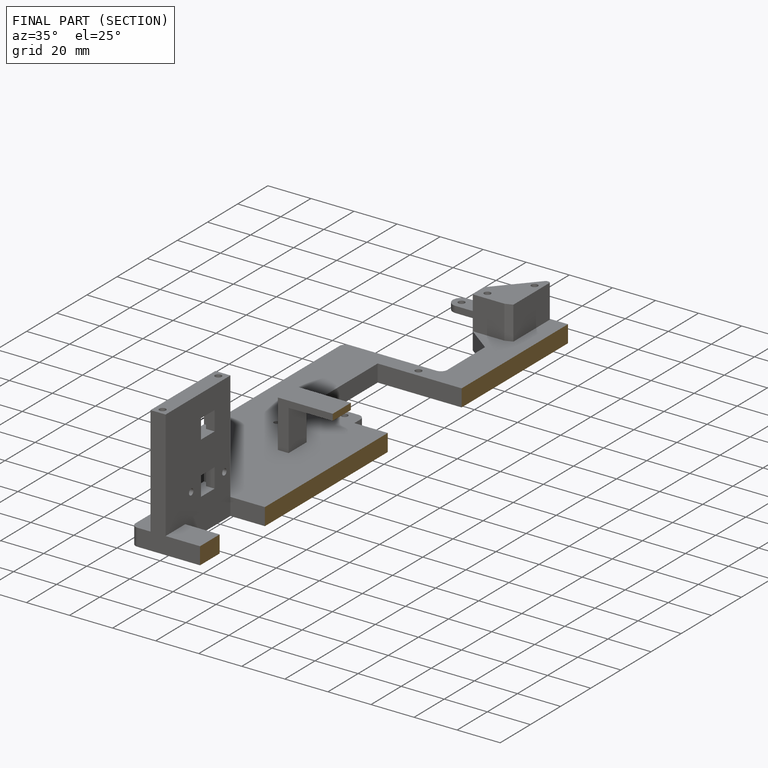
[diagram: finished part — half-section view (interior)]
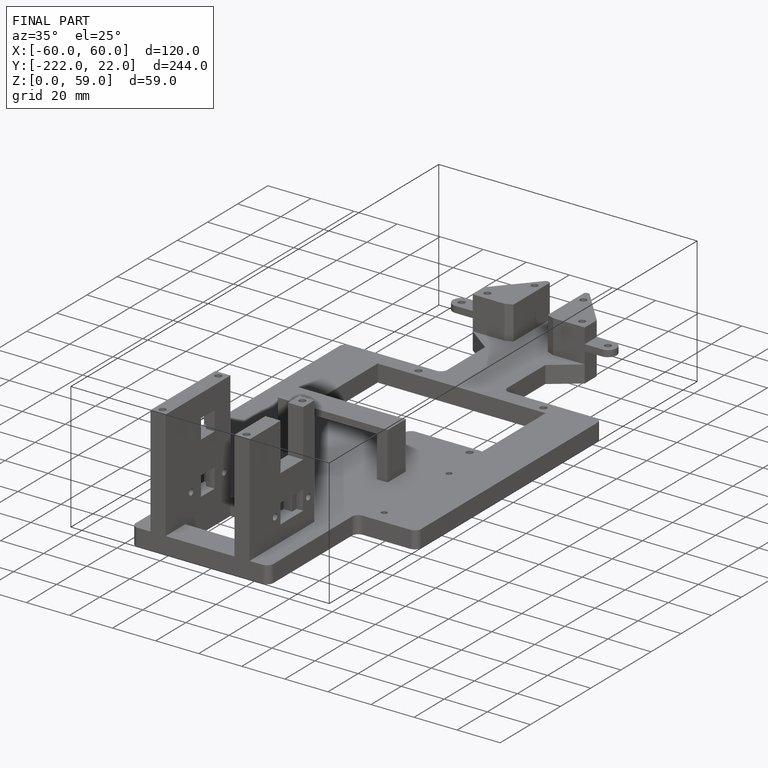
[diagram: finished part — iso view with bounding-box wireframe]
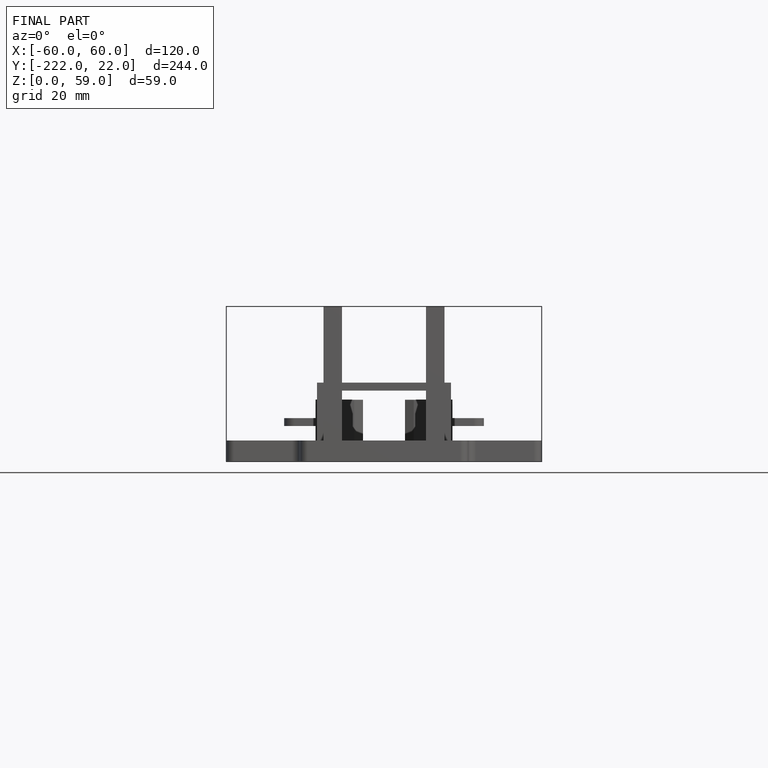
[diagram: finished part — front view with bounding-box wireframe]
